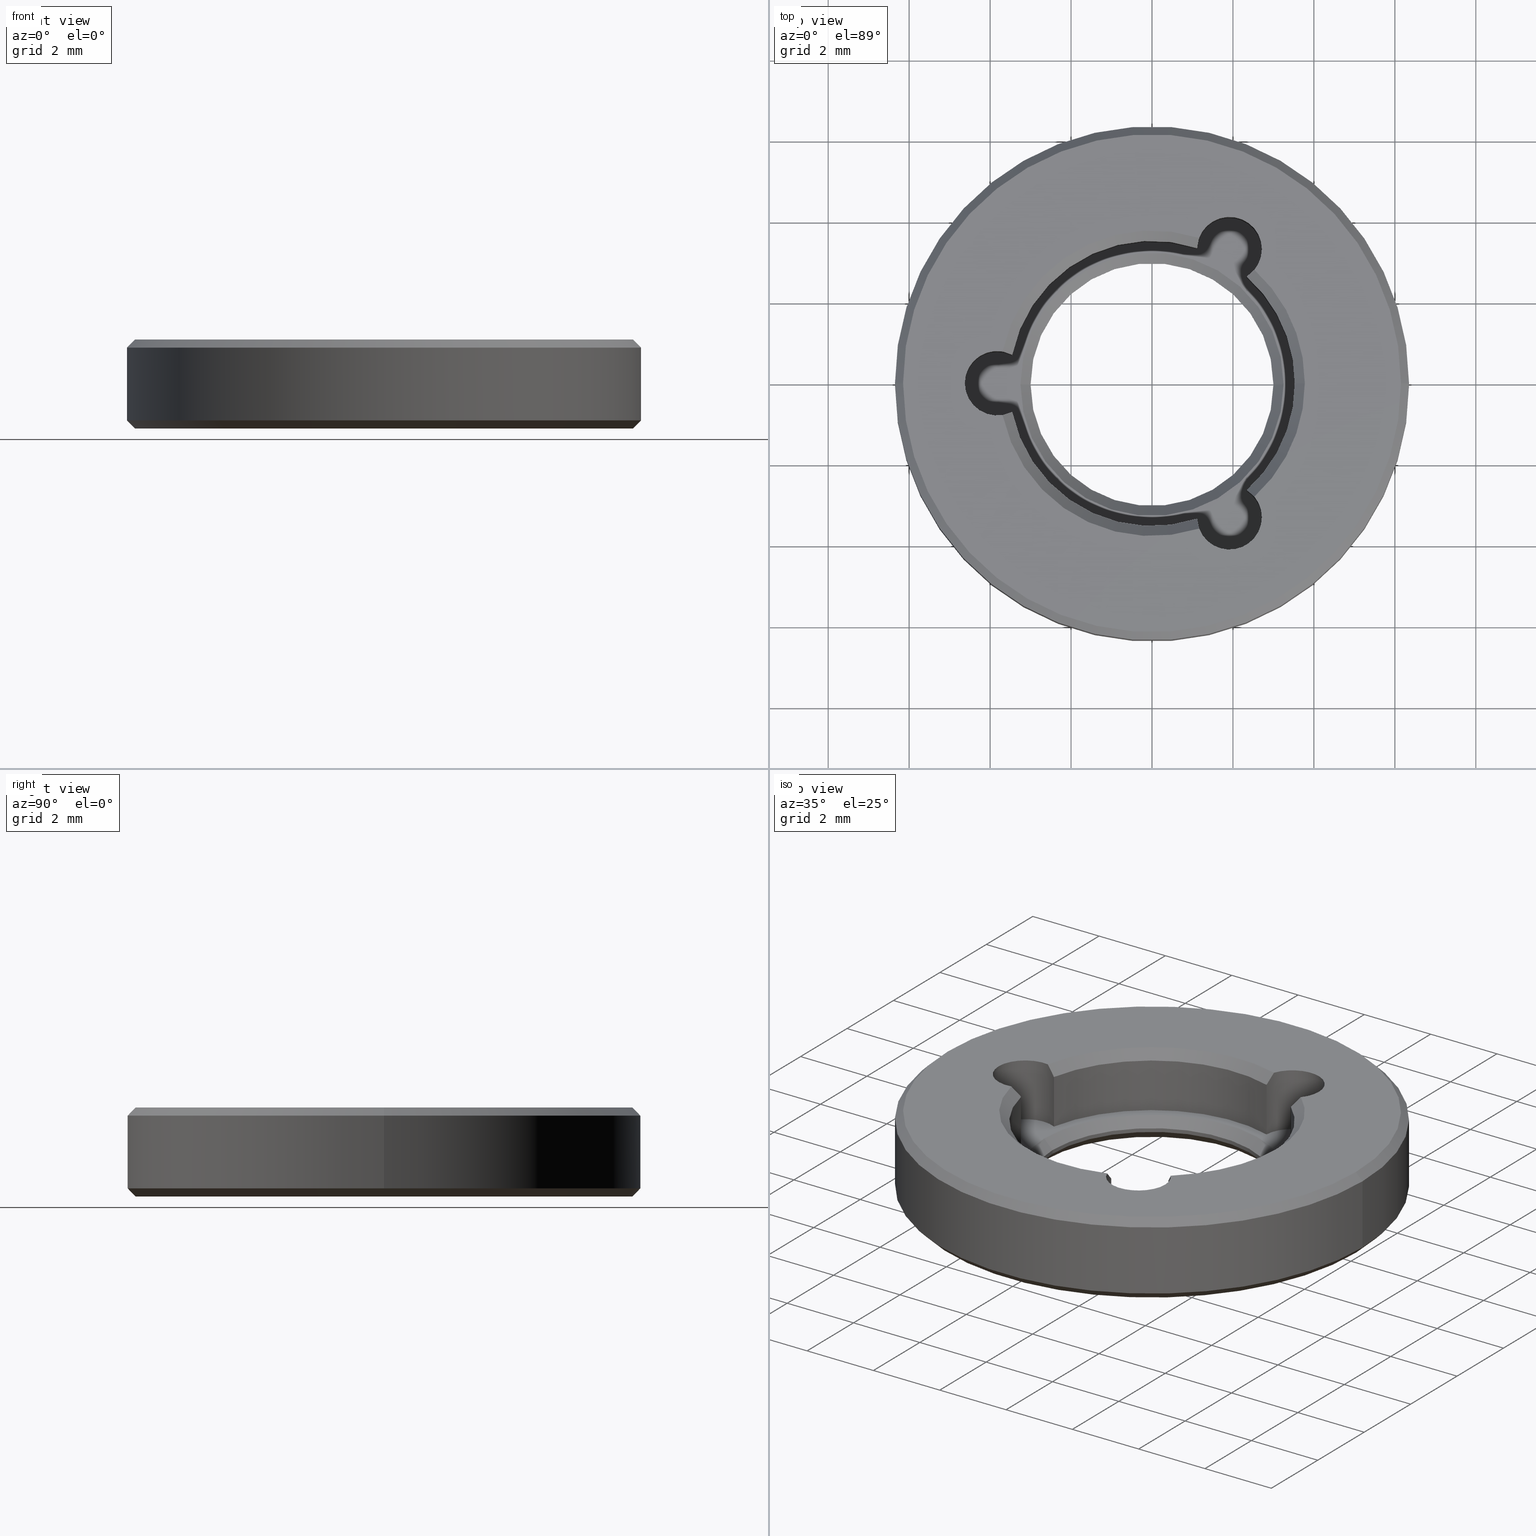
[diagram: canonical four-view strip — front | top / right | iso, engineering-drawing reading convention]
A machine part, canonical four-view strip (front | top / right | iso — engineering-drawing reading convention). The complete STEP part file that produces these views, byte-faithful:
ISO-10303-21;
HEADER;
FILE_DESCRIPTION (( 'STEP AP203' ),
    '1' );
FILE_NAME ('1.6.4.8-ZSJ-05-7.STEP',
    '2024-04-15T05:49:46',
    ( '' ),
    ( '' ),
    'SwSTEP 2.0',
    'SolidWorks 2021',
    '' );
FILE_SCHEMA (( 'CONFIG_CONTROL_DESIGN' ));
ENDSEC;

DATA;
#1 = CARTESIAN_POINT ( 'NONE',  ( 0.000000000000000000, 0.000000000000000000, 0.1999999999999987899 ) ) ;
#2 = ORIENTED_EDGE ( 'NONE', *, *, #750, .T. ) ;
#3 = CARTESIAN_POINT ( 'NONE',  ( 2.528963384397282521, 2.802671796764269807, 2.200000000000000178 ) ) ;
#4 = EDGE_CURVE ( 'NONE', #441, #583, #565, .T. ) ;
#5 = DIRECTION ( 'NONE',  ( -0.000000000000000000, -0.000000000000000000, 1.000000000000000000 ) ) ;
#6 = ORIENTED_EDGE ( 'NONE', *, *, #133, .T. ) ;
#7 = VECTOR ( 'NONE', #753, 1000.000000000000000 ) ;
#8 = CC_DESIGN_APPROVAL ( #726, ( #873 ) ) ;
#9 = CARTESIAN_POINT ( 'NONE',  ( 1.912500000000016076, -3.312547169475469122, 0.6000000000000003109 ) ) ;
#10 = CARTESIAN_POINT ( 'NONE',  ( 1.113143496693238976, 3.344628014558502116, 1.949999999999995959 ) ) ;
#11 = CARTESIAN_POINT ( 'NONE',  ( 0.000000000000000000, 0.000000000000000000, 0.000000000000000000 ) ) ;
#12 = DIRECTION ( 'NONE',  ( -0.000000000000000000, -0.000000000000000000, 1.000000000000000000 ) ) ;
#13 = EDGE_CURVE ( 'NONE', #697, #626, #72, .T. ) ;
#14 = DIRECTION ( 'NONE',  ( 1.000000000000000000, -8.881784197001252323E-16, 0.000000000000000000 ) ) ;
#15 = CARTESIAN_POINT ( 'NONE',  ( 1.133346610315522751, 3.512569729544490205, 2.115881670838754669 ) ) ;
#16 = ADVANCED_FACE ( 'NONE', ( #635 ), #23, .F. ) ;
#17 = VERTEX_POINT ( 'NONE', #863 ) ;
#18 = LINE ( 'NONE', #859, #709 ) ;
#19 = CONICAL_SURFACE ( 'NONE', #525, 6.349999999999999645, 0.7853981633974504994 ) ;
#20 = DIRECTION ( 'NONE',  ( 0.000000000000000000, 0.000000000000000000, 1.000000000000000000 ) ) ;
#21 = AXIS2_PLACEMENT_3D ( 'NONE', #623, #131, #475 ) ;
#22 = DIRECTION ( 'NONE',  ( 1.000000000000000000, 0.000000000000000000, 0.000000000000000000 ) ) ;
#23 = CYLINDRICAL_SURFACE ( 'NONE', #674, 0.8000000000000010436 ) ;
#24 = EDGE_CURVE ( 'NONE', #270, #697, #758, .T. ) ;
#25 = CARTESIAN_POINT ( 'NONE',  ( -3.453104575163398415, 0.7083034610854338498, 1.949999999999995959 ) ) ;
#26 = DIRECTION ( 'NONE',  ( -0.000000000000000000, -0.000000000000000000, 1.000000000000000000 ) ) ;
#27 = ORIENTED_EDGE ( 'NONE', *, *, #253, .F. ) ;
#28 = EDGE_LOOP ( 'NONE', ( #469, #599 ) ) ;
#29 = EDGE_CURVE ( 'NONE', #514, #879, #724, .T. ) ;
#30 = AXIS2_PLACEMENT_3D ( 'NONE', #831, #182, #132 ) ;
#31 = DIRECTION ( 'NONE',  ( 1.000000000000000000, 0.000000000000000000, 0.000000000000000000 ) ) ;
#32 = EDGE_LOOP ( 'NONE', ( #378, #752, #737, #315 ) ) ;
#33 = ORIENTED_EDGE ( 'NONE', *, *, #537, .T. ) ;
#34 = CONICAL_SURFACE ( 'NONE', #350, 3.524999999999999911, 0.7853981633974447263 ) ;
#35 = DIRECTION ( 'NONE',  ( 1.000000000000000000, 0.000000000000000000, 0.000000000000000000 ) ) ;
#36 = DIRECTION ( 'NONE',  ( 1.000000000000000000, 0.000000000000000000, 0.000000000000000000 ) ) ;
#37 = EDGE_CURVE ( 'NONE', #369, #899, #816, .T. ) ;
#38 = ORIENTED_EDGE ( 'NONE', *, *, #683, .F. ) ;
#39 = EDGE_LOOP ( 'NONE', ( #106, #191, #764, #397 ) ) ;
#40 = DIRECTION ( 'NONE',  ( -0.000000000000000000, -0.000000000000000000, -1.000000000000000000 ) ) ;
#41 = CYLINDRICAL_SURFACE ( 'NONE', #527, 0.8000000000000008216 ) ;
#42 = EDGE_LOOP ( 'NONE', ( #680, #871, #483, #331 ) ) ;
#43 = EDGE_CURVE ( 'NONE', #17, #769, #883, .T. ) ;
#44 = CARTESIAN_POINT ( 'NONE',  ( 0.000000000000000000, 0.000000000000000000, 1.949999999999995959 ) ) ;
#45 = DIRECTION ( 'NONE',  ( -0.5000000000000042188, 0.8660254037844362651, 0.000000000000000000 ) ) ;
#46 = VECTOR ( 'NONE', #660, 1000.000000000000114 ) ;
#47 = ORIENTED_EDGE ( 'NONE', *, *, #608, .T. ) ;
#48 = CIRCLE ( 'NONE', #137, 3.775000000000002132 ) ;
#49 = CIRCLE ( 'NONE', #251, 3.524999999999999911 ) ;
#50 = FACE_OUTER_BOUND ( 'NONE', #558, .T. ) ;
#51 = MANIFOLD_SOLID_BREP ( '����(Բ��)1', #631 ) ;
#52 = DIRECTION ( 'NONE',  ( 1.000000000000000000, 0.000000000000000000, 0.000000000000000000 ) ) ;
#53 = DATE_AND_TIME ( #396, #81 ) ;
#54 = ORIENTED_EDGE ( 'NONE', *, *, #359, .F. ) ;
#55 = DIRECTION ( 'NONE',  ( 0.000000000000000000, 0.000000000000000000, -1.000000000000000000 ) ) ;
#56 = ADVANCED_FACE ( 'NONE', ( #575 ), #578, .F. ) ;
#57 = CARTESIAN_POINT ( 'NONE',  ( -3.453104575163398415, 0.7083034610854338498, 1.949999999999995959 ) ) ;
#58 = APPLICATION_PROTOCOL_DEFINITION ( 'international standard', 'config_control_design', 1994, #399 ) ;
#59 = VERTEX_POINT ( 'NONE', #213 ) ;
#60 = VERTEX_POINT ( 'NONE', #794 ) ;
#61 = DIRECTION ( 'NONE',  ( 1.000000000000000000, 0.000000000000000000, 0.000000000000000000 ) ) ;
#62 = CARTESIAN_POINT ( 'NONE',  ( 0.000000000000000000, 0.000000000000000000, 0.6000000000000000888 ) ) ;
#63 = CALENDAR_DATE ( 2024, 15, 4 ) ;
#64 = ORIENTED_EDGE ( 'NONE', *, *, #259, .F. ) ;
#65 = DIRECTION ( 'NONE',  ( -1.000000000000000000, 0.000000000000000000, 0.000000000000000000 ) ) ;
#66 = AXIS2_PLACEMENT_3D ( 'NONE', #629, #5, #797 ) ;
#67 = SECURITY_CLASSIFICATION ( '', '', #286 ) ;
#68 = CARTESIAN_POINT ( 'NONE',  ( 0.000000000000000000, 0.000000000000000000, 2.200000000000000178 ) ) ;
#69 = ORIENTED_EDGE ( 'NONE', *, *, #299, .F. ) ;
#70 = ADVANCED_FACE ( 'NONE', ( #785 ), #77, .F. ) ;
#71 = DIRECTION ( 'NONE',  ( -0.000000000000000000, -0.000000000000000000, -1.000000000000000000 ) ) ;
#72 = B_SPLINE_CURVE_WITH_KNOTS ( 'NONE', 3,
 ( #152, #420, #568, #710 ),
 .UNSPECIFIED., .F., .F.,
 ( 4, 4 ),
 ( 2.812005786003215078E-07, 0.0003550956267152758543 ),
 .UNSPECIFIED. ) ;
#73 = DIRECTION ( 'NONE',  ( -0.000000000000000000, -0.000000000000000000, 1.000000000000000000 ) ) ;
#74 = VERTEX_POINT ( 'NONE', #644 ) ;
#75 = DIRECTION ( 'NONE',  ( -0.000000000000000000, -0.000000000000000000, -1.000000000000000000 ) ) ;
#76 = CARTESIAN_POINT ( 'NONE',  ( 2.712499999999969713, 3.312547169475495767, -1.662741699796954409 ) ) ;
#77 = CONICAL_SURFACE ( 'NONE', #374, 3.524999999999999911, 0.7853981633974447263 ) ;
#78 = VECTOR ( 'NONE', #254, 1000.000000000000000 ) ;
#79 = CIRCLE ( 'NONE', #245, 6.349999999999999645 ) ;
#80 = EDGE_CURVE ( 'NONE', #417, #249, #273, .T. ) ;
#81 = LOCAL_TIME ( 13, 49, 46.00000000000000000, #462 ) ;
#82 = LINE ( 'NONE', #293, #319 ) ;
#83 = DIRECTION ( 'NONE',  ( 0.7071067811865524577, 0.000000000000000000, 0.7071067811865426878 ) ) ;
#84 = CARTESIAN_POINT ( 'NONE',  ( 0.000000000000000000, 0.000000000000000000, 2.200000000000000178 ) ) ;
#85 = DIRECTION ( 'NONE',  ( 0.000000000000000000, 0.000000000000000000, 1.000000000000000000 ) ) ;
#86 = VERTEX_POINT ( 'NONE', #801 ) ;
#87 = DIRECTION ( 'NONE',  ( -0.000000000000000000, -0.000000000000000000, -1.000000000000000000 ) ) ;
#88 = DIRECTION ( 'NONE',  ( -0.5000000000000042188, 0.8660254037844362651, 0.000000000000000000 ) ) ;
#89 = ORIENTED_EDGE ( 'NONE', *, *, #580, .F. ) ;
#90 = AXIS2_PLACEMENT_3D ( 'NONE', #366, #12, #798 ) ;
#91 = DIRECTION ( 'NONE',  ( 0.000000000000000000, 0.000000000000000000, 1.000000000000000000 ) ) ;
#92 = AXIS2_PLACEMENT_3D ( 'NONE', #718, #784, #432 ) ;
#93 = AXIS2_PLACEMENT_3D ( 'NONE', #404, #907, #126 ) ;
#94 = DIRECTION ( 'NONE',  ( 1.000000000000000000, 0.000000000000000000, 0.000000000000000000 ) ) ;
#95 = EDGE_CURVE ( 'NONE', #521, #885, #209, .T. ) ;
#96 = CARTESIAN_POINT ( 'NONE',  ( 2.528963384397282521, 2.802671796764269807, 2.200000000000000178 ) ) ;
#97 = CARTESIAN_POINT ( 'NONE',  ( 0.000000000000000000, 0.000000000000000000, 0.2499999999999985012 ) ) ;
#98 = ORIENTED_EDGE ( 'NONE', *, *, #439, .T. ) ;
#99 = LINE ( 'NONE', #811, #46 ) ;
#100 = ORIENTED_EDGE ( 'NONE', *, *, #704, .T. ) ;
#101 = ORIENTED_EDGE ( 'NONE', *, *, #853, .T. ) ;
#102 = CIRCLE ( 'NONE', #540, 3.524999999999999911 ) ;
#103 = CARTESIAN_POINT ( 'NONE',  ( 1.912499999999968781, 3.312547169475495767, -1.662741699796954409 ) ) ;
#104 = AXIS2_PLACEMENT_3D ( 'NONE', #506, #802, #22 ) ;
#105 = ORIENTED_EDGE ( 'NONE', *, *, #184, .F. ) ;
#106 = ORIENTED_EDGE ( 'NONE', *, *, #287, .F. ) ;
#107 = LINE ( 'NONE', #381, #434 ) ;
#108 = EDGE_CURVE ( 'NONE', #734, #606, #284, .T. ) ;
#109 = DIRECTION ( 'NONE',  ( -0.7071067811865482389, 0.000000000000000000, -0.7071067811865469066 ) ) ;
#110 = ORIENTED_EDGE ( 'NONE', *, *, #683, .T. ) ;
#111 = ORIENTED_EDGE ( 'NONE', *, *, #508, .F. ) ;
#112 = CARTESIAN_POINT ( 'NONE',  ( -3.453104575163398859, -0.7083034610854347379, 1.400000000000000133 ) ) ;
#113 = DIRECTION ( 'NONE',  ( -0.000000000000000000, -0.000000000000000000, -1.000000000000000000 ) ) ;
#114 = ORIENTED_EDGE ( 'NONE', *, *, #443, .F. ) ;
#115 = DIRECTION ( 'NONE',  ( 1.000000000000000000, 0.000000000000000000, 0.000000000000000000 ) ) ;
#116 = CARTESIAN_POINT ( 'NONE',  ( 0.000000000000000000, 0.000000000000000000, 0.3500000000000006994 ) ) ;
#117 = DATE_AND_TIME ( #667, #848 ) ;
#118 = EDGE_LOOP ( 'NONE', ( #738, #64, #275, #241 ) ) ;
#119 = AXIS2_PLACEMENT_3D ( 'NONE', #364, #602, #470 ) ;
#120 = CIRCLE ( 'NONE', #362, 0.8000000000000008216 ) ;
#121 = CARTESIAN_POINT ( 'NONE',  ( 2.475301313191949237, 2.737791820598515891, 2.115881670838753781 ) ) ;
#122 = EDGE_CURVE ( 'NONE', #301, #169, #149, .T. ) ;
#123 = CARTESIAN_POINT ( 'NONE',  ( -3.453104575163398859, -0.7083034610854348490, 0.6000000000000003109 ) ) ;
#124 =( LENGTH_UNIT ( ) NAMED_UNIT ( * ) SI_UNIT ( .MILLI., .METRE. ) );
#125 = EDGE_LOOP ( 'NONE', ( #390, #757, #164, #111 ) ) ;
#126 = DIRECTION ( 'NONE',  ( 1.000000000000000000, 0.000000000000000000, 0.000000000000000000 ) ) ;
#127 = CC_DESIGN_PERSON_AND_ORGANIZATION_ASSIGNMENT ( #183, #744, ( #365 ) ) ;
#128 = CARTESIAN_POINT ( 'NONE',  ( 2.339961078470103040, 2.636324553473079035, 1.399999999999998801 ) ) ;
#129 = CARTESIAN_POINT ( 'NONE',  ( -3.453104575163398859, 0.7083034610854340718, 0.6000000000000003109 ) ) ;
#130 = ORIENTED_EDGE ( 'NONE', *, *, #608, .F. ) ;
#131 = DIRECTION ( 'NONE',  ( 0.000000000000000000, 0.000000000000000000, -1.000000000000000000 ) ) ;
#132 = DIRECTION ( 'NONE',  ( -1.000000000000000000, 0.000000000000000000, 0.000000000000000000 ) ) ;
#133 = EDGE_CURVE ( 'NONE', #529, #270, #294, .T. ) ;
#134 = ORIENTED_EDGE ( 'NONE', *, *, #650, .T. ) ;
#135 = CIRCLE ( 'NONE', #803, 6.349999999999999645 ) ;
#136 = CARTESIAN_POINT ( 'NONE',  ( 0.000000000000000000, 0.000000000000000000, 0.000000000000000000 ) ) ;
#137 = AXIS2_PLACEMENT_3D ( 'NONE', #84, #354, #14 ) ;
#138 = CONICAL_SURFACE ( 'NONE', #903, 3.000000000000000444, 0.7853981633974552734 ) ;
#139 = DIRECTION ( 'NONE',  ( 1.000000000000000000, 0.000000000000000000, -0.000000000000000000 ) ) ;
#140 = CC_DESIGN_PERSON_AND_ORGANIZATION_ASSIGNMENT ( #490, #278, ( #778 ) ) ;
#141 = EDGE_LOOP ( 'NONE', ( #69, #808, #661, #733 ) ) ;
#142 = DIRECTION ( 'NONE',  ( 1.000000000000000000, 0.000000000000000000, 0.000000000000000000 ) ) ;
#143 = DIRECTION ( 'NONE',  ( 0.000000000000000000, -0.000000000000000000, 1.000000000000000000 ) ) ;
#144 = EDGE_CURVE ( 'NONE', #773, #626, #501, .T. ) ;
#145 = CARTESIAN_POINT ( 'NONE',  ( 2.339961078470140343, -2.636324553473046617, 1.949999999999995959 ) ) ;
#146 = DATE_AND_TIME ( #283, #304 ) ;
#147 = DIRECTION ( 'NONE',  ( 1.000000000000000000, 0.000000000000000000, 0.000000000000000000 ) ) ;
#148 = ORIENTED_EDGE ( 'NONE', *, *, #95, .F. ) ;
#149 = CIRCLE ( 'NONE', #900, 3.249999999999999556 ) ;
#150 = CIRCLE ( 'NONE', #498, 6.349999999999999645 ) ;
#151 = DIRECTION ( 'NONE',  ( -0.000000000000000000, -0.000000000000000000, -1.000000000000000000 ) ) ;
#152 = CARTESIAN_POINT ( 'NONE',  ( 2.528963384397321601, -2.802671796764234280, 2.200000000000000178 ) ) ;
#153 = LINE ( 'NONE', #706, #280 ) ;
#154 = CARTESIAN_POINT ( 'NONE',  ( 2.339961078470140343, -2.636324553473046617, 1.400000000000000133 ) ) ;
#155 = EDGE_LOOP ( 'NONE', ( #242, #33 ) ) ;
#156 = CARTESIAN_POINT ( 'NONE',  ( 0.000000000000000000, 0.000000000000000000, 2.200000000000000178 ) ) ;
#157 = DIRECTION ( 'NONE',  ( -0.000000000000000000, -0.000000000000000000, 1.000000000000000000 ) ) ;
#158 = EDGE_CURVE ( 'NONE', #291, #864, #102, .T. ) ;
#159 = CARTESIAN_POINT ( 'NONE',  ( 0.000000000000000000, 0.000000000000000000, 2.000000000000000444 ) ) ;
#160 = CIRCLE ( 'NONE', #512, 3.000000000000000444 ) ;
#161 = DIRECTION ( 'NONE',  ( 0.000000000000000000, 0.000000000000000000, 1.000000000000000000 ) ) ;
#162 = ORIENTED_EDGE ( 'NONE', *, *, #786, .T. ) ;
#163 = DIRECTION ( 'NONE',  ( -0.000000000000000000, -0.000000000000000000, -1.000000000000000000 ) ) ;
#164 = ORIENTED_EDGE ( 'NONE', *, *, #471, .F. ) ;
#165 = ORIENTED_EDGE ( 'NONE', *, *, #518, .T. ) ;
#166 = EDGE_CURVE ( 'NONE', #514, #864, #206, .T. ) ;
#167 = DIRECTION ( 'NONE',  ( 0.000000000000000000, 0.000000000000000000, -1.000000000000000000 ) ) ;
#168 = ORIENTED_EDGE ( 'NONE', *, *, #259, .T. ) ;
#169 = VERTEX_POINT ( 'NONE', #666 ) ;
#170 = VECTOR ( 'NONE', #83, 1000.000000000000000 ) ;
#171 = AXIS2_PLACEMENT_3D ( 'NONE', #422, #216, #495 ) ;
#172 = CYLINDRICAL_SURFACE ( 'NONE', #555, 0.8000000000000010436 ) ;
#173 = AXIS2_PLACEMENT_3D ( 'NONE', #298, #675, #252 ) ;
#174 = ORIENTED_EDGE ( 'NONE', *, *, #122, .F. ) ;
#175 = ORIENTED_EDGE ( 'NONE', *, *, #853, .F. ) ;
#176 = FACE_OUTER_BOUND ( 'NONE', #407, .T. ) ;
#177 = DIRECTION ( 'NONE',  ( -0.000000000000000000, -0.000000000000000000, -1.000000000000000000 ) ) ;
#178 = DATE_AND_TIME ( #248, #780 ) ;
#179 = ORIENTED_EDGE ( 'NONE', *, *, #443, .T. ) ;
#180 = B_SPLINE_CURVE_WITH_KNOTS ( 'NONE', 3,
 ( #386, #820, #121, #96 ),
 .UNSPECIFIED., .F., .F.,
 ( 4, 4 ),
 ( 2.868043316631483824E-07, 0.0003551012304683391564 ),
 .UNSPECIFIED. ) ;
#181 = CARTESIAN_POINT ( 'NONE',  ( 0.000000000000000000, 0.000000000000000000, 0.3500000000000006994 ) ) ;
#182 = DIRECTION ( 'NONE',  ( -0.000000000000000000, -0.000000000000000000, -1.000000000000000000 ) ) ;
#183 = PERSON_AND_ORGANIZATION ( #742, #450 ) ;
#184 = EDGE_CURVE ( 'NONE', #773, #529, #496, .T. ) ;
#185 = ORIENTED_EDGE ( 'NONE', *, *, #827, .F. ) ;
#186 = DIRECTION ( 'NONE',  ( 0.000000000000000000, 0.000000000000000000, 1.000000000000000000 ) ) ;
#187 = DIRECTION ( 'NONE',  ( 0.000000000000000000, 0.000000000000000000, 1.000000000000000000 ) ) ;
#188 = CARTESIAN_POINT ( 'NONE',  ( 1.133346610315572711, -3.512569729544473773, 2.115881670838754669 ) ) ;
#189 = CIRCLE ( 'NONE', #868, 3.524999999999999911 ) ;
#190 = EDGE_LOOP ( 'NONE', ( #54, #645, #47, #446 ) ) ;
#191 = ORIENTED_EDGE ( 'NONE', *, *, #43, .F. ) ;
#192 = AXIS2_PLACEMENT_3D ( 'NONE', #419, #91, #489 ) ;
#193 = LINE ( 'NONE', #112, #7 ) ;
#194 = CYLINDRICAL_SURFACE ( 'NONE', #692, 6.349999999999999645 ) ;
#195 = PERSON_AND_ORGANIZATION ( #742, #450 ) ;
#196 = ORIENTED_EDGE ( 'NONE', *, *, #790, .T. ) ;
#197 = DIRECTION ( 'NONE',  ( 1.000000000000000000, 0.000000000000000000, 0.000000000000000000 ) ) ;
#198 = EDGE_CURVE ( 'NONE', #824, #270, #464, .T. ) ;
#199 = DIRECTION ( 'NONE',  ( 0.000000000000000000, 0.000000000000000000, -1.000000000000000000 ) ) ;
#200 = ORIENTED_EDGE ( 'NONE', *, *, #198, .T. ) ;
#201 = CARTESIAN_POINT ( 'NONE',  ( 0.000000000000000000, 0.000000000000000000, 1.949999999999995959 ) ) ;
#202 = EDGE_CURVE ( 'NONE', #734, #60, #723, .T. ) ;
#203 = LINE ( 'NONE', #841, #78 ) ;
#204 = APPROVAL_ROLE ( '' ) ;
#205 = ORIENTED_EDGE ( 'NONE', *, *, #4, .F. ) ;
#206 = CIRCLE ( 'NONE', #171, 0.8000000000000010436 ) ;
#207 = DIRECTION ( 'NONE',  ( 0.000000000000000000, 0.000000000000000000, 1.000000000000000000 ) ) ;
#208 = AXIS2_PLACEMENT_3D ( 'NONE', #136, #71, #65 ) ;
#209 = B_SPLINE_CURVE_WITH_KNOTS ( 'NONE', 3,
 ( #491, #703, #641, #290 ),
 .UNSPECIFIED., .F., .F.,
 ( 4, 4 ),
 ( 2.812005786157019320E-07, 0.0003550956267152915210 ),
 .UNSPECIFIED. ) ;
#210 = CARTESIAN_POINT ( 'NONE',  ( 3.775000000000002132, 0.000000000000000000, 2.200000000000000178 ) ) ;
#211 = ORIENTED_EDGE ( 'NONE', *, *, #144, .F. ) ;
#212 = CARTESIAN_POINT ( 'NONE',  ( 1.113143496693238976, 3.344628014558502560, 1.399999999999998801 ) ) ;
#213 = CARTESIAN_POINT ( 'NONE',  ( 6.149999999999999467, 7.654042494670954648E-16, 2.200000000000000178 ) ) ;
#214 = EDGE_CURVE ( 'NONE', #583, #664, #360, .T. ) ;
#215 = CARTESIAN_POINT ( 'NONE',  ( 3.250000000000003109, 0.000000000000000000, 0.6000000000000000888 ) ) ;
#216 = DIRECTION ( 'NONE',  ( -0.000000000000000000, -0.000000000000000000, -1.000000000000000000 ) ) ;
#217 = CIRCLE ( 'NONE', #739, 6.149999999999999467 ) ;
#218 = CIRCLE ( 'NONE', #448, 0.8000000000000009326 ) ;
#219 = CIRCLE ( 'NONE', #363, 6.150000000000000355 ) ;
#220 = DIRECTION ( 'NONE',  ( 0.7071067811865490160, 0.000000000000000000, 0.7071067811865460184 ) ) ;
#221 = DIRECTION ( 'NONE',  ( 1.000000000000000000, 0.000000000000000000, 0.000000000000000000 ) ) ;
#222 = ADVANCED_FACE ( 'NONE', ( #519 ), #819, .F. ) ;
#223 = PLANE ( 'NONE',  #192 ) ;
#224 = CARTESIAN_POINT ( 'NONE',  ( 0.000000000000000000, 0.000000000000000000, 0.000000000000000000 ) ) ;
#225 = ORIENTED_EDGE ( 'NONE', *, *, #640, .T. ) ;
#226 = DIRECTION ( 'NONE',  ( 0.7071067811865451302, 0.000000000000000000, 0.7071067811865500152 ) ) ;
#227 = DIRECTION ( 'NONE',  ( 0.000000000000000000, 0.000000000000000000, 1.000000000000000000 ) ) ;
#228 = ORIENTED_EDGE ( 'NONE', *, *, #418, .F. ) ;
#229 = AXIS2_PLACEMENT_3D ( 'NONE', #804, #40, #35 ) ;
#230 = VECTOR ( 'NONE', #427, 1000.000000000000000 ) ;
#231 = DIRECTION ( 'NONE',  ( -0.000000000000000000, -0.000000000000000000, -1.000000000000000000 ) ) ;
#232 = EDGE_CURVE ( 'NONE', #370, #86, #601, .T. ) ;
#233 = ORIENTED_EDGE ( 'NONE', *, *, #4, .T. ) ;
#234 = EDGE_LOOP ( 'NONE', ( #579, #668, #832, #179 ) ) ;
#235 = CARTESIAN_POINT ( 'NONE',  ( 3.524999999999999911, 0.000000000000000000, 0.6000000000000000888 ) ) ;
#236 = ORIENTED_EDGE ( 'NONE', *, *, #704, .F. ) ;
#237 = ORIENTED_EDGE ( 'NONE', *, *, #766, .F. ) ;
#238 = ADVANCED_FACE ( 'NONE', ( #305 ), #656, .F. ) ;
#239 = CARTESIAN_POINT ( 'NONE',  ( 0.000000000000000000, 0.000000000000000000, 1.949999999999995959 ) ) ;
#240 = FACE_OUTER_BOUND ( 'NONE', #379, .T. ) ;
#241 = ORIENTED_EDGE ( 'NONE', *, *, #549, .F. ) ;
#242 = ORIENTED_EDGE ( 'NONE', *, *, #214, .T. ) ;
#243 = CYLINDRICAL_SURFACE ( 'NONE', #497, 3.524999999999999911 ) ;
#244 = AXIS2_PLACEMENT_3D ( 'NONE', #342, #333, #619 ) ;
#245 = AXIS2_PLACEMENT_3D ( 'NONE', #1, #476, #274 ) ;
#246 = FACE_OUTER_BOUND ( 'NONE', #839, .T. ) ;
#247 = VECTOR ( 'NONE', #835, 1000.000000000000000 ) ;
#248 = CALENDAR_DATE ( 2024, 15, 4 ) ;
#249 = VERTEX_POINT ( 'NONE', #437 ) ;
#250 = VERTEX_POINT ( 'NONE', #371 ) ;
#251 = AXIS2_PLACEMENT_3D ( 'NONE', #201, #207, #197 ) ;
#252 = DIRECTION ( 'NONE',  ( 1.000000000000000000, 0.000000000000000000, 0.000000000000000000 ) ) ;
#253 = EDGE_CURVE ( 'NONE', #60, #734, #570, .T. ) ;
#254 = DIRECTION ( 'NONE',  ( -0.000000000000000000, -0.000000000000000000, -1.000000000000000000 ) ) ;
#255 =( NAMED_UNIT ( * ) PLANE_ANGLE_UNIT ( ) SI_UNIT ( $, .RADIAN. ) );
#256 = EDGE_LOOP ( 'NONE', ( #459, #630 ) ) ;
#257 = CARTESIAN_POINT ( 'NONE',  ( -6.150000000000000355, 7.654042494670957606E-16, 0.000000000000000000 ) ) ;
#258 = DIRECTION ( 'NONE',  ( 0.000000000000000000, 0.000000000000000000, 1.000000000000000000 ) ) ;
#259 = EDGE_CURVE ( 'NONE', #593, #417, #834, .T. ) ;
#260 = DIRECTION ( 'NONE',  ( 0.000000000000000000, 0.000000000000000000, 1.000000000000000000 ) ) ;
#261 = ORIENTED_EDGE ( 'NONE', *, *, #881, .F. ) ;
#262 = DIRECTION ( 'NONE',  ( 1.000000000000000000, 0.000000000000000000, 0.000000000000000000 ) ) ;
#263 = CARTESIAN_POINT ( 'NONE',  ( 0.000000000000000000, 0.000000000000000000, 0.6000000000000000888 ) ) ;
#264 = PERSON_AND_ORGANIZATION ( #742, #450 ) ;
#265 = ORIENTED_EDGE ( 'NONE', *, *, #827, .T. ) ;
#266 = CIRCLE ( 'NONE', #435, 0.8000000000000010436 ) ;
#267 = ADVANCED_FACE ( 'NONE', ( #581 ), #172, .F. ) ;
#268 = DIRECTION ( 'NONE',  ( 0.7071067811865482389, 8.659560562354941486E-17, -0.7071067811865469066 ) ) ;
#269 = CARTESIAN_POINT ( 'NONE',  ( 1.162703282269326177, 3.591482434510873567, 2.200000000000000178 ) ) ;
#270 = VERTEX_POINT ( 'NONE', #872 ) ;
#271 = LINE ( 'NONE', #691, #603 ) ;
#272 = EDGE_CURVE ( 'NONE', #335, #86, #107, .T. ) ;
#273 = B_SPLINE_CURVE_WITH_KNOTS ( 'NONE', 3,
 ( #719, #15, #504, #10 ),
 .UNSPECIFIED., .F., .F.,
 ( 4, 4 ),
 ( 2.812005786058547505E-07, 0.0003550956267152818174 ),
 .UNSPECIFIED. ) ;
#274 = DIRECTION ( 'NONE',  ( 1.000000000000000000, 0.000000000000000000, 0.000000000000000000 ) ) ;
#275 = ORIENTED_EDGE ( 'NONE', *, *, #344, .F. ) ;
#276 = CARTESIAN_POINT ( 'NONE',  ( 1.113143496693286494, -3.344628014558486573, 1.949999999999995959 ) ) ;
#277 = CARTESIAN_POINT ( 'NONE',  ( 3.524999999999999911, 0.000000000000000000, 0.6000000000000000888 ) ) ;
#278 = PERSON_AND_ORGANIZATION_ROLE ( 'design_supplier' ) ;
#279 = ORIENTED_EDGE ( 'NONE', *, *, #810, .F. ) ;
#280 = VECTOR ( 'NONE', #220, 1000.000000000000114 ) ;
#281 = CARTESIAN_POINT ( 'NONE',  ( -3.000000000000000444, 3.673940397442060361E-16, 0.3500000000000006994 ) ) ;
#282 = EDGE_CURVE ( 'NONE', #626, #74, #189, .T. ) ;
#283 = CALENDAR_DATE ( 2024, 15, 4 ) ;
#284 = LINE ( 'NONE', #358, #705 ) ;
#285 = DIRECTION ( 'NONE',  ( 0.000000000000000000, 0.000000000000000000, 1.000000000000000000 ) ) ;
#286 = SECURITY_CLASSIFICATION_LEVEL ( 'unclassified' ) ;
#287 = EDGE_CURVE ( 'NONE', #769, #369, #99, .T. ) ;
#288 = CARTESIAN_POINT ( 'NONE',  ( 0.000000000000000000, 0.000000000000000000, 0.6000000000000000888 ) ) ;
#289 = LINE ( 'NONE', #500, #424 ) ;
#290 = CARTESIAN_POINT ( 'NONE',  ( -3.453104575163398415, -0.7083034610854346269, 1.949999999999995737 ) ) ;
#291 = VERTEX_POINT ( 'NONE', #235 ) ;
#292 = ADVANCED_FACE ( 'NONE', ( #246 ), #528, .F. ) ;
#293 = CARTESIAN_POINT ( 'NONE',  ( -3.000000000000000444, 3.673940397442060361E-16, 0.3500000000000006994 ) ) ;
#294 = LINE ( 'NONE', #857, #722 ) ;
#295 = EDGE_CURVE ( 'NONE', #751, #886, #135, .T. ) ;
#296 = DIRECTION ( 'NONE',  ( 0.000000000000000000, 0.000000000000000000, -1.000000000000000000 ) ) ;
#297 = DIRECTION ( 'NONE',  ( 1.000000000000000000, 0.000000000000000000, 0.000000000000000000 ) ) ;
#298 = CARTESIAN_POINT ( 'NONE',  ( 0.000000000000000000, 0.000000000000000000, 0.6000000000000000888 ) ) ;
#299 = EDGE_CURVE ( 'NONE', #59, #308, #217, .T. ) ;
#300 = DIRECTION ( 'NONE',  ( 1.000000000000000000, 0.000000000000000000, 0.000000000000000000 ) ) ;
#301 = VERTEX_POINT ( 'NONE', #822 ) ;
#302 = ORIENTED_EDGE ( 'NONE', *, *, #659, .T. ) ;
#303 = CIRCLE ( 'NONE', #465, 3.524999999999999911 ) ;
#304 = LOCAL_TIME ( 13, 49, 46.00000000000000000, #634 ) ;
#305 = FACE_OUTER_BOUND ( 'NONE', #681, .T. ) ;
#306 = ADVANCED_FACE ( 'NONE', ( #876, #814 ), #451, .T. ) ;
#307 = ORIENTED_EDGE ( 'NONE', *, *, #272, .T. ) ;
#308 = VERTEX_POINT ( 'NONE', #889 ) ;
#309 = DIRECTION ( 'NONE',  ( 0.000000000000000000, 0.000000000000000000, 1.000000000000000000 ) ) ;
#310 = ORIENTED_EDGE ( 'NONE', *, *, #24, .F. ) ;
#311 = ORIENTED_EDGE ( 'NONE', *, *, #870, .F. ) ;
#312 = CARTESIAN_POINT ( 'NONE',  ( 1.912500000000016076, -3.312547169475469122, 2.200000000000000178 ) ) ;
#313 = CARTESIAN_POINT ( 'NONE',  ( -3.824999999999999734, -4.684274006738625136E-16, -1.662741699796954853 ) ) ;
#314 = EDGE_LOOP ( 'NONE', ( #228, #615, #438, #205 ) ) ;
#315 = ORIENTED_EDGE ( 'NONE', *, *, #282, .T. ) ;
#316 = DESIGN_CONTEXT ( 'detailed design', #637, 'design' ) ;
#317 = DIRECTION ( 'NONE',  ( 0.000000000000000000, 0.000000000000000000, 1.000000000000000000 ) ) ;
#318 = ADVANCED_FACE ( 'NONE', ( #904 ), #779, .F. ) ;
#319 = VECTOR ( 'NONE', #560, 1000.000000000000000 ) ;
#320 = DIRECTION ( 'NONE',  ( 1.000000000000000000, 0.000000000000000000, 0.000000000000000000 ) ) ;
#321 = APPROVAL_ROLE ( '' ) ;
#322 = ORIENTED_EDGE ( 'NONE', *, *, #166, .T. ) ;
#323 = DIRECTION ( 'NONE',  ( -1.000000000000000000, 0.000000000000000000, 0.000000000000000000 ) ) ;
#324 = CC_DESIGN_DATE_AND_TIME_ASSIGNMENT ( #178, #457, ( #873 ) ) ;
#325 = LINE ( 'NONE', #609, #793 ) ;
#326 = ORIENTED_EDGE ( 'NONE', *, *, #588, .T. ) ;
#327 = CARTESIAN_POINT ( 'NONE',  ( 0.000000000000000000, 0.000000000000000000, 0.000000000000000000 ) ) ;
#328 = DIRECTION ( 'NONE',  ( -0.7071067811865490160, 0.000000000000000000, -0.7071067811865459074 ) ) ;
#329 = ADVANCED_FACE ( 'NONE', ( #772 ), #194, .T. ) ;
#330 = APPROVAL_DATE_TIME ( #117, #726 ) ;
#331 = ORIENTED_EDGE ( 'NONE', *, *, #295, .F. ) ;
#332 = FACE_OUTER_BOUND ( 'NONE', #642, .T. ) ;
#333 = DIRECTION ( 'NONE',  ( -0.000000000000000000, -0.000000000000000000, 1.000000000000000000 ) ) ;
#334 = AXIS2_PLACEMENT_3D ( 'NONE', #684, #466, #139 ) ;
#335 = VERTEX_POINT ( 'NONE', #897 ) ;
#336 = CIRCLE ( 'NONE', #572, 6.149999999999999467 ) ;
#337 = CONICAL_SURFACE ( 'NONE', #559, 3.000000000000000444, 0.7853981633974552734 ) ;
#338 = CARTESIAN_POINT ( 'NONE',  ( 0.000000000000000000, 0.000000000000000000, 0.3500000000000006994 ) ) ;
#339 = DIRECTION ( 'NONE',  ( 0.000000000000000000, -0.000000000000000000, 1.000000000000000000 ) ) ;
#340 = ORIENTED_EDGE ( 'NONE', *, *, #613, .F. ) ;
#341 = CARTESIAN_POINT ( 'NONE',  ( 2.339961078470103040, 2.636324553473079035, 0.5999999999999998668 ) ) ;
#342 = CARTESIAN_POINT ( 'NONE',  ( 0.000000000000000000, 0.000000000000000000, 0.6000000000000000888 ) ) ;
#343 = ORIENTED_EDGE ( 'NONE', *, *, #430, .F. ) ;
#344 = EDGE_CURVE ( 'NONE', #672, #593, #502, .T. ) ;
#345 = DIRECTION ( 'NONE',  ( 1.000000000000000000, 0.000000000000000000, 0.000000000000000000 ) ) ;
#346 = AXIS2_PLACEMENT_3D ( 'NONE', #648, #85, #88 ) ;
#347 = CARTESIAN_POINT ( 'NONE',  ( 3.000000000000000444, 0.000000000000000000, 0.3500000000000006994 ) ) ;
#348 = AXIS2_PLACEMENT_3D ( 'NONE', #729, #507, #31 ) ;
#349 = CONICAL_SURFACE ( 'NONE', #847, 6.349999999999999645, 0.7853981633974504994 ) ;
#350 = AXIS2_PLACEMENT_3D ( 'NONE', #44, #728, #115 ) ;
#351 = PRODUCT_RELATED_PRODUCT_CATEGORY ( 'detail', '', ( #365 ) ) ;
#352 = CARTESIAN_POINT ( 'NONE',  ( 6.149999999999999467, 7.531577814756219106E-16, 2.200000000000000178 ) ) ;
#353 = CARTESIAN_POINT ( 'NONE',  ( 0.000000000000000000, 0.000000000000000000, 0.000000000000000000 ) ) ;
#354 = DIRECTION ( 'NONE',  ( -0.000000000000000000, -0.000000000000000000, -1.000000000000000000 ) ) ;
#355 = DIRECTION ( 'NONE',  ( 1.000000000000000000, 0.000000000000000000, 0.000000000000000000 ) ) ;
#356 = ADVANCED_FACE ( 'NONE', ( #410 ), #19, .T. ) ;
#357 = DIRECTION ( 'NONE',  ( -0.000000000000000000, -0.000000000000000000, 1.000000000000000000 ) ) ;
#358 = CARTESIAN_POINT ( 'NONE',  ( -3.000000000000000444, 3.673940397442060361E-16, 0.000000000000000000 ) ) ;
#359 = EDGE_CURVE ( 'NONE', #751, #899, #203, .T. ) ;
#360 = CIRCLE ( 'NONE', #229, 3.250000000000003109 ) ;
#361 = VECTOR ( 'NONE', #199, 1000.000000000000000 ) ;
#362 = AXIS2_PLACEMENT_3D ( 'NONE', #670, #317, #888 ) ;
#363 = AXIS2_PLACEMENT_3D ( 'NONE', #398, #408, #840 ) ;
#364 = CARTESIAN_POINT ( 'NONE',  ( -3.824999999999999734, -4.684274006738625136E-16, 0.6000000000000003109 ) ) ;
#365 = PRODUCT ( '1.6.4.8-ZSJ-05-7', '1.6.4.8-ZSJ-05-7', '', ( #828 ) ) ;
#366 = CARTESIAN_POINT ( 'NONE',  ( 0.000000000000000000, 0.000000000000000000, 0.1999999999999987899 ) ) ;
#367 = CARTESIAN_POINT ( 'NONE',  ( 0.000000000000000000, 0.000000000000000000, 2.200000000000000178 ) ) ;
#368 = CARTESIAN_POINT ( 'NONE',  ( 0.000000000000000000, 0.000000000000000000, 0.2499999999999985012 ) ) ;
#369 = VERTEX_POINT ( 'NONE', #762 ) ;
#370 = VERTEX_POINT ( 'NONE', #123 ) ;
#371 = CARTESIAN_POINT ( 'NONE',  ( 1.113143496693238976, 3.344628014558502560, 0.5999999999999998668 ) ) ;
#372 = ORIENTED_EDGE ( 'NONE', *, *, #720, .T. ) ;
#373 = ORIENTED_EDGE ( 'NONE', *, *, #850, .F. ) ;
#374 = AXIS2_PLACEMENT_3D ( 'NONE', #866, #20, #431 ) ;
#375 = AXIS2_PLACEMENT_3D ( 'NONE', #156, #75, #345 ) ;
#376 = APPROVAL_PERSON_ORGANIZATION ( #702, #499, #204 ) ;
#377 = DIRECTION ( 'NONE',  ( 1.000000000000000000, 0.000000000000000000, 0.000000000000000000 ) ) ;
#378 = ORIENTED_EDGE ( 'NONE', *, *, #481, .F. ) ;
#379 = EDGE_LOOP ( 'NONE', ( #372, #690, #745, #162, #547, #236 ) ) ;
#380 = UNCERTAINTY_MEASURE_WITH_UNIT (LENGTH_MEASURE( 1.000000000000000082E-05 ), #124, 'distance_accuracy_value', 'NONE');
#381 = CARTESIAN_POINT ( 'NONE',  ( 1.113143496693286716, -3.344628014558486129, 1.400000000000000133 ) ) ;
#382 = APPROVAL_STATUS ( 'not_yet_approved' ) ;
#383 = ADVANCED_FACE ( 'NONE', ( #461 ), #844, .F. ) ;
#384 = ORIENTED_EDGE ( 'NONE', *, *, #13, .F. ) ;
#385 = ORIENTED_EDGE ( 'NONE', *, *, #640, .F. ) ;
#386 = CARTESIAN_POINT ( 'NONE',  ( 2.339961078470103040, 2.636324553473079479, 1.949999999999995737 ) ) ;
#387 = CARTESIAN_POINT ( 'NONE',  ( 0.000000000000000000, 0.000000000000000000, 0.000000000000000000 ) ) ;
#388 = APPROVAL_ROLE ( '' ) ;
#389 = EDGE_LOOP ( 'NONE', ( #600, #534, #809, #818 ) ) ;
#390 = ORIENTED_EDGE ( 'NONE', *, *, #800, .F. ) ;
#391 = EDGE_CURVE ( 'NONE', #250, #890, #776, .T. ) ;
#392 = CYLINDRICAL_SURFACE ( 'NONE', #173, 3.524999999999999911 ) ;
#393 = CONICAL_SURFACE ( 'NONE', #693, 3.249999999999999556, 0.7853981633974491672 ) ;
#394 = CARTESIAN_POINT ( 'NONE',  ( 1.912500000000016076, -3.312547169475469122, -1.662741699796954853 ) ) ;
#395 = AXIS2_PLACEMENT_3D ( 'NONE', #877, #260, #605 ) ;
#396 = CALENDAR_DATE ( 2024, 15, 4 ) ;
#397 = ORIENTED_EDGE ( 'NONE', *, *, #37, .F. ) ;
#398 = CARTESIAN_POINT ( 'NONE',  ( 0.000000000000000000, 0.000000000000000000, 0.000000000000000000 ) ) ;
#399 = APPLICATION_CONTEXT ( 'configuration controlled 3d designs of mechanical parts and assemblies' ) ;
#400 = ADVANCED_FACE ( 'NONE', ( #754 ), #479, .T. ) ;
#401 = DIRECTION ( 'NONE',  ( 1.000000000000000000, 0.000000000000000000, 0.000000000000000000 ) ) ;
#402 = CARTESIAN_POINT ( 'NONE',  ( -3.453104575163398415, -0.7083034610854346269, 1.949999999999995737 ) ) ;
#403 = EDGE_LOOP ( 'NONE', ( #98, #817, #700, #373, #563, #823, #895, #89, #105 ) ) ;
#404 = CARTESIAN_POINT ( 'NONE',  ( 1.912499999999968781, 3.312547169475495767, 0.5999999999999998668 ) ) ;
#405 = LINE ( 'NONE', #546, #361 ) ;
#406 =( NAMED_UNIT ( * ) SI_UNIT ( $, .STERADIAN. ) SOLID_ANGLE_UNIT ( ) );
#407 = EDGE_LOOP ( 'NONE', ( #412, #505, #384, #458 ) ) ;
#408 = DIRECTION ( 'NONE',  ( -0.000000000000000000, -0.000000000000000000, -1.000000000000000000 ) ) ;
#409 = AXIS2_PLACEMENT_3D ( 'NONE', #224, #653, #355 ) ;
#410 = FACE_OUTER_BOUND ( 'NONE', #125, .T. ) ;
#411 = VECTOR ( 'NONE', #428, 1000.000000000000000 ) ;
#412 = ORIENTED_EDGE ( 'NONE', *, *, #650, .F. ) ;
#413 = AXIS2_PLACEMENT_3D ( 'NONE', #116, #678, #52 ) ;
#414 = CC_DESIGN_SECURITY_CLASSIFICATION ( #67, ( #778 ) ) ;
#415 = DIRECTION ( 'NONE',  ( 0.000000000000000000, 0.000000000000000000, 1.000000000000000000 ) ) ;
#416 = DIRECTION ( 'NONE',  ( 1.000000000000000000, 0.000000000000000000, 0.000000000000000000 ) ) ;
#417 = VERTEX_POINT ( 'NONE', #269 ) ;
#418 = EDGE_CURVE ( 'NONE', #606, #441, #423, .T. ) ;
#419 = CARTESIAN_POINT ( 'NONE',  ( 0.000000000000000000, 0.000000000000000000, 2.200000000000000178 ) ) ;
#420 = CARTESIAN_POINT ( 'NONE',  ( 2.475301313191988317, -2.737791820598481252, 2.115881670838754225 ) ) ;
#421 = LINE ( 'NONE', #352, #618 ) ;
#422 = CARTESIAN_POINT ( 'NONE',  ( 1.912499999999968781, 3.312547169475495767, 0.5999999999999998668 ) ) ;
#423 = CIRCLE ( 'NONE', #413, 3.000000000000000444 ) ;
#424 = VECTOR ( 'NONE', #226, 1000.000000000000114 ) ;
#425 = CC_DESIGN_APPROVAL ( #499, ( #67 ) ) ;
#426 = EDGE_CURVE ( 'NONE', #308, #886, #325, .T. ) ;
#427 = DIRECTION ( 'NONE',  ( -0.000000000000000000, 0.000000000000000000, 1.000000000000000000 ) ) ;
#428 = DIRECTION ( 'NONE',  ( -0.000000000000000000, 0.000000000000000000, 1.000000000000000000 ) ) ;
#429 = CARTESIAN_POINT ( 'NONE',  ( 2.712499999999969713, 3.312547169475495767, 0.5999999999999998668 ) ) ;
#430 = EDGE_CURVE ( 'NONE', #879, #417, #218, .T. ) ;
#431 = DIRECTION ( 'NONE',  ( 1.000000000000000000, 0.000000000000000000, 0.000000000000000000 ) ) ;
#432 = DIRECTION ( 'NONE',  ( 1.000000000000000000, 0.000000000000000000, 0.000000000000000000 ) ) ;
#433 = DIRECTION ( 'NONE',  ( 0.000000000000000000, -0.000000000000000000, 1.000000000000000000 ) ) ;
#434 = VECTOR ( 'NONE', #882, 1000.000000000000000 ) ;
#435 = AXIS2_PLACEMENT_3D ( 'NONE', #9, #87, #564 ) ;
#436 = DIRECTION ( 'NONE',  ( 1.000000000000000000, 0.000000000000000000, 0.000000000000000000 ) ) ;
#437 = CARTESIAN_POINT ( 'NONE',  ( 1.113143496693238976, 3.344628014558502116, 1.949999999999995959 ) ) ;
#438 = ORIENTED_EDGE ( 'NONE', *, *, #214, .F. ) ;
#439 = EDGE_CURVE ( 'NONE', #773, #291, #760, .T. ) ;
#440 = CARTESIAN_POINT ( 'NONE',  ( 0.000000000000000000, 0.000000000000000000, 2.200000000000000178 ) ) ;
#441 = VERTEX_POINT ( 'NONE', #472 ) ;
#442 = ORIENTED_EDGE ( 'NONE', *, *, #471, .T. ) ;
#443 = EDGE_CURVE ( 'NONE', #842, #864, #767, .T. ) ;
#444 = DIRECTION ( 'NONE',  ( -0.000000000000000000, 0.000000000000000000, 1.000000000000000000 ) ) ;
#445 = ORIENTED_EDGE ( 'NONE', *, *, #13, .T. ) ;
#446 = ORIENTED_EDGE ( 'NONE', *, *, #37, .T. ) ;
#447 = AXIS2_PLACEMENT_3D ( 'NONE', #103, #444, #516 ) ;
#448 = AXIS2_PLACEMENT_3D ( 'NONE', #687, #258, #694 ) ;
#449 = EDGE_CURVE ( 'NONE', #672, #890, #405, .T. ) ;
#450 = ORGANIZATION ( 'δָ��', 'δָ��', '' ) ;
#451 = PLANE ( 'NONE',  #334 ) ;
#452 = CARTESIAN_POINT ( 'NONE',  ( 0.000000000000000000, 0.000000000000000000, 1.949999999999995959 ) ) ;
#453 = ORIENTED_EDGE ( 'NONE', *, *, #202, .F. ) ;
#454 = ORIENTED_EDGE ( 'NONE', *, *, #184, .T. ) ;
#455 = DIRECTION ( 'NONE',  ( -0.000000000000000000, -0.000000000000000000, 1.000000000000000000 ) ) ;
#456 = DIRECTION ( 'NONE',  ( 1.000000000000000000, 0.000000000000000000, 0.000000000000000000 ) ) ;
#457 = DATE_TIME_ROLE ( 'creation_date' ) ;
#458 = ORIENTED_EDGE ( 'NONE', *, *, #588, .F. ) ;
#459 = ORIENTED_EDGE ( 'NONE', *, *, #43, .T. ) ;
#460 = DIRECTION ( 'NONE',  ( -0.4999999999999918399, -0.8660254037844433705, 0.000000000000000000 ) ) ;
#461 = FACE_OUTER_BOUND ( 'NONE', #590, .T. ) ;
#462 = COORDINATED_UNIVERSAL_TIME_OFFSET ( 8, 0, .AHEAD. ) ;
#463 = FACE_OUTER_BOUND ( 'NONE', #314, .T. ) ;
#464 = CIRCLE ( 'NONE', #480, 0.8000000000000009326 ) ;
#465 = AXIS2_PLACEMENT_3D ( 'NONE', #643, #701, #142 ) ;
#466 = DIRECTION ( 'NONE',  ( 0.000000000000000000, 0.000000000000000000, 1.000000000000000000 ) ) ;
#467 = APPROVAL_PERSON_ORGANIZATION ( #755, #566, #321 ) ;
#468 = DIRECTION ( 'NONE',  ( 1.000000000000000000, 0.000000000000000000, 0.000000000000000000 ) ) ;
#469 = ORIENTED_EDGE ( 'NONE', *, *, #487, .T. ) ;
#470 = DIRECTION ( 'NONE',  ( 1.000000000000000000, 0.000000000000000000, 0.000000000000000000 ) ) ;
#471 = EDGE_CURVE ( 'NONE', #899, #369, #79, .T. ) ;
#472 = CARTESIAN_POINT ( 'NONE',  ( 3.000000000000000444, 0.000000000000000000, 0.3500000000000006994 ) ) ;
#473 = DIRECTION ( 'NONE',  ( 0.000000000000000000, 0.000000000000000000, 1.000000000000000000 ) ) ;
#474 = ORIENTED_EDGE ( 'NONE', *, *, #108, .T. ) ;
#475 = DIRECTION ( 'NONE',  ( -1.000000000000000000, 0.000000000000000000, 0.000000000000000000 ) ) ;
#476 = DIRECTION ( 'NONE',  ( -0.000000000000000000, -0.000000000000000000, 1.000000000000000000 ) ) ;
#477 = ORIENTED_EDGE ( 'NONE', *, *, #29, .F. ) ;
#478 = PLANE ( 'NONE',  #484 ) ;
#479 = CYLINDRICAL_SURFACE ( 'NONE', #30, 6.349999999999999645 ) ;
#480 = AXIS2_PLACEMENT_3D ( 'NONE', #312, #161, #45 ) ;
#481 = EDGE_CURVE ( 'NONE', #291, #74, #639, .T. ) ;
#482 = AXIS2_PLACEMENT_3D ( 'NONE', #11, #285, #849 ) ;
#483 = ORIENTED_EDGE ( 'NONE', *, *, #426, .T. ) ;
#484 = AXIS2_PLACEMENT_3D ( 'NONE', #901, #415, #485 ) ;
#485 = DIRECTION ( 'NONE',  ( 1.000000000000000000, 0.000000000000000000, -0.000000000000000000 ) ) ;
#486 = CYLINDRICAL_SURFACE ( 'NONE', #66, 3.524999999999999911 ) ;
#487 = EDGE_CURVE ( 'NONE', #308, #59, #336, .T. ) ;
#488 = CARTESIAN_POINT ( 'NONE',  ( 1.912499999999968781, 3.312547169475495767, -1.662741699796954409 ) ) ;
#489 = DIRECTION ( 'NONE',  ( 1.000000000000000000, 0.000000000000000000, -0.000000000000000000 ) ) ;
#490 = PERSON_AND_ORGANIZATION ( #742, #450 ) ;
#491 = CARTESIAN_POINT ( 'NONE',  ( -3.691666666666668650, -0.7888106377466171937, 2.200000000000000178 ) ) ;
#492 = ADVANCED_FACE ( 'NONE', ( #799 ), #486, .F. ) ;
#493 = CARTESIAN_POINT ( 'NONE',  ( 0.000000000000000000, 0.000000000000000000, 2.200000000000000178 ) ) ;
#494 = VECTOR ( 'NONE', #143, 1000.000000000000000 ) ;
#495 = DIRECTION ( 'NONE',  ( 1.000000000000000000, 0.000000000000000000, 0.000000000000000000 ) ) ;
#496 = CIRCLE ( 'NONE', #792, 0.8000000000000010436 ) ;
#497 = AXIS2_PLACEMENT_3D ( 'NONE', #891, #455, #262 ) ;
#498 = AXIS2_PLACEMENT_3D ( 'NONE', #159, #296, #436 ) ;
#499 = APPROVAL ( #708, 'δָ��' ) ;
#500 = CARTESIAN_POINT ( 'NONE',  ( 3.524999999999999911, 0.000000000000000000, 1.949999999999995959 ) ) ;
#501 = LINE ( 'NONE', #154, #494 ) ;
#502 = B_SPLINE_CURVE_WITH_KNOTS ( 'NONE', 3,
 ( #57, #550, #531, #826 ),
 .UNSPECIFIED., .F., .F.,
 ( 4, 4 ),
 ( 2.868043316601906492E-07, 0.0003551012304683360122 ),
 .UNSPECIFIED. ) ;
#503 = FACE_OUTER_BOUND ( 'NONE', #39, .T. ) ;
#504 = CARTESIAN_POINT ( 'NONE',  ( 1.116586065798447214, 3.430406303603278140, 2.032476182125225517 ) ) ;
#505 = ORIENTED_EDGE ( 'NONE', *, *, #282, .F. ) ;
#506 = CARTESIAN_POINT ( 'NONE',  ( 0.000000000000000000, 0.000000000000000000, 1.949999999999995959 ) ) ;
#507 = DIRECTION ( 'NONE',  ( 0.000000000000000000, 0.000000000000000000, 1.000000000000000000 ) ) ;
#508 = EDGE_CURVE ( 'NONE', #17, #899, #153, .T. ) ;
#509 = ORIENTED_EDGE ( 'NONE', *, *, #122, .T. ) ;
#510 = AXIS2_PLACEMENT_3D ( 'NONE', #97, #113, #320 ) ;
#511 = CIRCLE ( 'NONE', #119, 0.8000000000000008216 ) ;
#512 = AXIS2_PLACEMENT_3D ( 'NONE', #535, #530, #825 ) ;
#513 = DIRECTION ( 'NONE',  ( 0.000000000000000000, 0.000000000000000000, 1.000000000000000000 ) ) ;
#514 = VERTEX_POINT ( 'NONE', #429 ) ;
#515 = ORIENTED_EDGE ( 'NONE', *, *, #898, .F. ) ;
#516 = DIRECTION ( 'NONE',  ( 1.000000000000000000, 0.000000000000000000, 0.000000000000000000 ) ) ;
#517 = ORIENTED_EDGE ( 'NONE', *, *, #580, .T. ) ;
#518 = EDGE_CURVE ( 'NONE', #169, #301, #887, .T. ) ;
#519 = FACE_OUTER_BOUND ( 'NONE', #610, .T. ) ;
#520 = APPLICATION_PROTOCOL_DEFINITION ( 'international standard', 'config_control_design', 1994, #637 ) ;
#521 = VERTEX_POINT ( 'NONE', #554 ) ;
#522 = ORIENTED_EDGE ( 'NONE', *, *, #108, .F. ) ;
#523 = AXIS2_PLACEMENT_3D ( 'NONE', #387, #26, #597 ) ;
#524 = CARTESIAN_POINT ( 'NONE',  ( 6.349999999999999645, 7.776507174585692163E-16, 2.000000000000000444 ) ) ;
#525 = AXIS2_PLACEMENT_3D ( 'NONE', #699, #73, #401 ) ;
#526 = CIRCLE ( 'NONE', #375, 3.775000000000002132 ) ;
#527 = AXIS2_PLACEMENT_3D ( 'NONE', #313, #614, #468 ) ;
#528 = CYLINDRICAL_SURFACE ( 'NONE', #447, 0.8000000000000010436 ) ;
#529 = VERTEX_POINT ( 'NONE', #632 ) ;
#530 = DIRECTION ( 'NONE',  ( 0.000000000000000000, 0.000000000000000000, 1.000000000000000000 ) ) ;
#531 = CARTESIAN_POINT ( 'NONE',  ( -3.608647923507530830, 0.7747779089459847501, 2.115881670838754225 ) ) ;
#532 = CARTESIAN_POINT ( 'NONE',  ( 1.162703282269377025, -3.591482434510857136, 2.200000000000000178 ) ) ;
#533 = VERTEX_POINT ( 'NONE', #210 ) ;
#534 = ORIENTED_EDGE ( 'NONE', *, *, #622, .T. ) ;
#535 = CARTESIAN_POINT ( 'NONE',  ( 0.000000000000000000, 0.000000000000000000, 0.3500000000000006994 ) ) ;
#536 = DIRECTION ( 'NONE',  ( -1.000000000000000000, 0.000000000000000000, 0.000000000000000000 ) ) ;
#537 = EDGE_CURVE ( 'NONE', #664, #583, #585, .T. ) ;
#538 = EDGE_LOOP ( 'NONE', ( #454, #6, #589, #445, #211 ) ) ;
#539 = LINE ( 'NONE', #655, #247 ) ;
#540 = AXIS2_PLACEMENT_3D ( 'NONE', #288, #789, #147 ) ;
#541 = DIRECTION ( 'NONE',  ( 0.000000000000000000, 0.000000000000000000, 1.000000000000000000 ) ) ;
#542 = AXIS2_PLACEMENT_3D ( 'NONE', #783, #686, #61 ) ;
#543 = ORIENTED_EDGE ( 'NONE', *, *, #430, .T. ) ;
#544 = CC_DESIGN_PERSON_AND_ORGANIZATION_ASSIGNMENT ( #625, #788, ( #67 ) ) ;
#545 = CARTESIAN_POINT ( 'NONE',  ( 2.339961078470103040, 2.636324553473079479, 1.949999999999995737 ) ) ;
#546 = CARTESIAN_POINT ( 'NONE',  ( -3.453104575163398859, 0.7083034610854339608, 1.400000000000000133 ) ) ;
#547 = ORIENTED_EDGE ( 'NONE', *, *, #95, .T. ) ;
#548 = FACE_OUTER_BOUND ( 'NONE', #845, .T. ) ;
#549 = EDGE_CURVE ( 'NONE', #249, #672, #303, .T. ) ;
#550 = CARTESIAN_POINT ( 'NONE',  ( -3.529112037121942436, 0.7482112533084270822, 2.032476182125225073 ) ) ;
#551 = ORIENTED_EDGE ( 'NONE', *, *, #810, .T. ) ;
#552 = CARTESIAN_POINT ( 'NONE',  ( 1.116586065798495842, -3.430406303603262153, 2.032476182125225517 ) ) ;
#553 = ORIENTED_EDGE ( 'NONE', *, *, #202, .T. ) ;
#554 = CARTESIAN_POINT ( 'NONE',  ( -3.691666666666668650, -0.7888106377466171937, 2.200000000000000178 ) ) ;
#555 = AXIS2_PLACEMENT_3D ( 'NONE', #743, #869, #587 ) ;
#556 = COORDINATED_UNIVERSAL_TIME_OFFSET ( 8, 0, .AHEAD. ) ;
#557 = CONICAL_SURFACE ( 'NONE', #649, 6.149999999999999467, 0.7853981633974503884 ) ;
#558 = EDGE_LOOP ( 'NONE', ( #175, #453, #717, #658 ) ) ;
#559 = AXIS2_PLACEMENT_3D ( 'NONE', #338, #843, #774 ) ;
#560 = DIRECTION ( 'NONE',  ( -0.7071067811865524577, 8.659560562354993255E-17, 0.7071067811865426878 ) ) ;
#561 = DIRECTION ( 'NONE',  ( -0.000000000000000000, -0.000000000000000000, 1.000000000000000000 ) ) ;
#562 = ADVANCED_FACE ( 'NONE', ( #503 ), #349, .T. ) ;
#563 = ORIENTED_EDGE ( 'NONE', *, *, #391, .T. ) ;
#564 = DIRECTION ( 'NONE',  ( 1.000000000000000000, 0.000000000000000000, 0.000000000000000000 ) ) ;
#565 = LINE ( 'NONE', #347, #170 ) ;
#566 = APPROVAL ( #749, 'δָ��' ) ;
#567 = CARTESIAN_POINT ( 'NONE',  ( -3.691666666666668650, 0.7888106377466163055, 2.200000000000000178 ) ) ;
#568 = CARTESIAN_POINT ( 'NONE',  ( 2.412525971323475460, -2.682195050294827965, 2.032476182125225073 ) ) ;
#569 = B_SPLINE_CURVE_WITH_KNOTS ( 'NONE', 3,
 ( #276, #552, #188, #532 ),
 .UNSPECIFIED., .F., .F.,
 ( 4, 4 ),
 ( 2.868043313720740334E-07, 0.0003551012304680473976 ),
 .UNSPECIFIED. ) ;
#570 = CIRCLE ( 'NONE', #584, 3.000000000000000444 ) ;
#571 = EDGE_LOOP ( 'NONE', ( #311, #279, #148, #185 ) ) ;
#572 = AXIS2_PLACEMENT_3D ( 'NONE', #493, #855, #574 ) ;
#573 = CIRCLE ( 'NONE', #542, 3.775000000000002132 ) ;
#574 = DIRECTION ( 'NONE',  ( 1.000000000000000000, 0.000000000000000000, 0.000000000000000000 ) ) ;
#575 = FACE_OUTER_BOUND ( 'NONE', #813, .T. ) ;
#576 = ADVANCED_FACE ( 'NONE', ( #791, #862 ), #223, .T. ) ;
#577 = FACE_OUTER_BOUND ( 'NONE', #42, .T. ) ;
#578 = CYLINDRICAL_SURFACE ( 'NONE', #775, 3.000000000000000444 ) ;
#579 = ORIENTED_EDGE ( 'NONE', *, *, #158, .F. ) ;
#580 = EDGE_CURVE ( 'NONE', #529, #86, #266, .T. ) ;
#581 = FACE_OUTER_BOUND ( 'NONE', #538, .T. ) ;
#582 = EDGE_LOOP ( 'NONE', ( #756, #517, #714, #829, #200 ) ) ;
#583 = VERTEX_POINT ( 'NONE', #215 ) ;
#584 = AXIS2_PLACEMENT_3D ( 'NONE', #368, #177, #671 ) ;
#585 = CIRCLE ( 'NONE', #92, 3.250000000000003109 ) ;
#586 = APPROVAL_PERSON_ORGANIZATION ( #264, #726, #388 ) ;
#587 = DIRECTION ( 'NONE',  ( 1.000000000000000000, 0.000000000000000000, 0.000000000000000000 ) ) ;
#588 = EDGE_CURVE ( 'NONE', #533, #697, #526, .T. ) ;
#589 = ORIENTED_EDGE ( 'NONE', *, *, #24, .T. ) ;
#590 = EDGE_LOOP ( 'NONE', ( #551, #307, #621, #100 ) ) ;
#591 = DIRECTION ( 'NONE',  ( 1.000000000000000000, 0.000000000000000000, 0.000000000000000000 ) ) ;
#592 = CARTESIAN_POINT ( 'NONE',  ( -6.349999999999999645, 0.000000000000000000, 2.000000000000000444 ) ) ;
#593 = VERTEX_POINT ( 'NONE', #567 ) ;
#594 = ORIENTED_EDGE ( 'NONE', *, *, #537, .F. ) ;
#595 = CC_DESIGN_PERSON_AND_ORGANIZATION_ASSIGNMENT ( #195, #768, ( #873 ) ) ;
#596 = FACE_OUTER_BOUND ( 'NONE', #389, .T. ) ;
#597 = DIRECTION ( 'NONE',  ( 1.000000000000000000, 0.000000000000000000, 0.000000000000000000 ) ) ;
#598 = COORDINATED_UNIVERSAL_TIME_OFFSET ( 8, 0, .AHEAD. ) ;
#599 = ORIENTED_EDGE ( 'NONE', *, *, #299, .T. ) ;
#600 = ORIENTED_EDGE ( 'NONE', *, *, #391, .F. ) ;
#601 = CIRCLE ( 'NONE', #348, 3.524999999999999911 ) ;
#602 = DIRECTION ( 'NONE',  ( -0.000000000000000000, -0.000000000000000000, -1.000000000000000000 ) ) ;
#603 = VECTOR ( 'NONE', #268, 999.9999999999998863 ) ;
#604 = DIRECTION ( 'NONE',  ( 1.000000000000000000, 0.000000000000000000, 0.000000000000000000 ) ) ;
#605 = DIRECTION ( 'NONE',  ( 1.000000000000000000, 0.000000000000000000, 0.000000000000000000 ) ) ;
#606 = VERTEX_POINT ( 'NONE', #281 ) ;
#607 = CARTESIAN_POINT ( 'NONE',  ( 2.528963384397321601, -2.802671796764234280, 2.200000000000000178 ) ) ;
#608 = EDGE_CURVE ( 'NONE', #886, #369, #18, .T. ) ;
#609 = CARTESIAN_POINT ( 'NONE',  ( -6.149999999999999467, 0.000000000000000000, 2.200000000000000178 ) ) ;
#610 = EDGE_LOOP ( 'NONE', ( #515, #134, #385, #237 ) ) ;
#611 = DIRECTION ( 'NONE',  ( 0.000000000000000000, 0.000000000000000000, 1.000000000000000000 ) ) ;
#612 = DIRECTION ( 'NONE',  ( -0.000000000000000000, -0.000000000000000000, -1.000000000000000000 ) ) ;
#613 = EDGE_CURVE ( 'NONE', #606, #664, #82, .T. ) ;
#614 = DIRECTION ( 'NONE',  ( -0.000000000000000000, -0.000000000000000000, 1.000000000000000000 ) ) ;
#615 = ORIENTED_EDGE ( 'NONE', *, *, #613, .T. ) ;
#616 = FACE_OUTER_BOUND ( 'NONE', #141, .T. ) ;
#617 = AXIS2_PLACEMENT_3D ( 'NONE', #440, #231, #300 ) ;
#618 = VECTOR ( 'NONE', #715, 1000.000000000000000 ) ;
#619 = DIRECTION ( 'NONE',  ( 1.000000000000000000, 0.000000000000000000, 0.000000000000000000 ) ) ;
#620 = APPROVAL_DATE_TIME ( #856, #499 ) ;
#621 = ORIENTED_EDGE ( 'NONE', *, *, #232, .F. ) ;
#622 = EDGE_CURVE ( 'NONE', #250, #249, #852, .T. ) ;
#623 = CARTESIAN_POINT ( 'NONE',  ( 0.000000000000000000, 0.000000000000000000, 2.200000000000000178 ) ) ;
#624 = DIRECTION ( 'NONE',  ( 0.000000000000000000, -0.000000000000000000, -1.000000000000000000 ) ) ;
#625 = PERSON_AND_ORGANIZATION ( #742, #450 ) ;
#626 = VERTEX_POINT ( 'NONE', #145 ) ;
#627 = CARTESIAN_POINT ( 'NONE',  ( 2.712499999999969713, 3.312547169475495767, 2.200000000000000178 ) ) ;
#628 = EDGE_CURVE ( 'NONE', #59, #751, #421, .T. ) ;
#629 = CARTESIAN_POINT ( 'NONE',  ( 0.000000000000000000, 0.000000000000000000, 0.6000000000000000888 ) ) ;
#630 = ORIENTED_EDGE ( 'NONE', *, *, #800, .T. ) ;
#631 = CLOSED_SHELL ( 'NONE', ( #292, #267, #821, #356, #796, #858, #238, #400, #222, #731, #676, #735, #492, #771, #329, #576, #833, #383, #306, #56, #70, #688, #861, #562, #654, #893, #318, #16 ) ) ;
#632 = CARTESIAN_POINT ( 'NONE',  ( 2.712500000000016787, -3.312547169475469122, 0.6000000000000003109 ) ) ;
#633 = AXIS2_PLACEMENT_3D ( 'NONE', #394, #339, #416 ) ;
#634 = COORDINATED_UNIVERSAL_TIME_OFFSET ( 8, 0, .AHEAD. ) ;
#635 = FACE_OUTER_BOUND ( 'NONE', #867, .T. ) ;
#636 = CONICAL_SURFACE ( 'NONE', #208, 3.249999999999999556, 0.7853981633974491672 ) ;
#637 = APPLICATION_CONTEXT ( 'configuration controlled 3d designs of mechanical parts and assemblies' ) ;
#638 = EDGE_LOOP ( 'NONE', ( #509, #165 ) ) ;
#639 = LINE ( 'NONE', #277, #740 ) ;
#640 = EDGE_CURVE ( 'NONE', #851, #533, #48, .T. ) ;
#641 = CARTESIAN_POINT ( 'NONE',  ( -3.529112037121942436, -0.7482112533084279704, 2.032476182125225073 ) ) ;
#642 = EDGE_LOOP ( 'NONE', ( #27, #101, #174, #261 ) ) ;
#643 = CARTESIAN_POINT ( 'NONE',  ( 0.000000000000000000, 0.000000000000000000, 1.949999999999995959 ) ) ;
#644 = CARTESIAN_POINT ( 'NONE',  ( 3.524999999999999911, 0.000000000000000000, 1.949999999999995959 ) ) ;
#645 = ORIENTED_EDGE ( 'NONE', *, *, #295, .T. ) ;
#646 = DIRECTION ( 'NONE',  ( -0.000000000000000000, -0.000000000000000000, 1.000000000000000000 ) ) ;
#647 = AXIS2_PLACEMENT_3D ( 'NONE', #732, #227, #456 ) ;
#648 = CARTESIAN_POINT ( 'NONE',  ( 1.912500000000016076, -3.312547169475469122, 2.200000000000000178 ) ) ;
#649 = AXIS2_PLACEMENT_3D ( 'NONE', #367, #55, #830 ) ;
#650 = EDGE_CURVE ( 'NONE', #74, #533, #289, .T. ) ;
#651 = CIRCLE ( 'NONE', #677, 3.524999999999999911 ) ;
#652 = CARTESIAN_POINT ( 'NONE',  ( -3.250000000000003109, 3.980102097228901683E-16, 0.6000000000000000888 ) ) ;
#653 = DIRECTION ( 'NONE',  ( -0.000000000000000000, -0.000000000000000000, -1.000000000000000000 ) ) ;
#654 = ADVANCED_FACE ( 'NONE', ( #577 ), #557, .T. ) ;
#655 = CARTESIAN_POINT ( 'NONE',  ( 3.000000000000000444, 0.000000000000000000, 0.000000000000000000 ) ) ;
#656 = CYLINDRICAL_SURFACE ( 'NONE', #523, 3.000000000000000444 ) ;
#657 = ORIENTED_EDGE ( 'NONE', *, *, #766, .T. ) ;
#658 = ORIENTED_EDGE ( 'NONE', *, *, #518, .F. ) ;
#659 = EDGE_CURVE ( 'NONE', #60, #441, #539, .T. ) ;
#660 = DIRECTION ( 'NONE',  ( -0.7071067811865490160, 8.659560562354953812E-17, 0.7071067811865460184 ) ) ;
#661 = ORIENTED_EDGE ( 'NONE', *, *, #750, .F. ) ;
#662 = AXIS2_PLACEMENT_3D ( 'NONE', #682, #611, #460 ) ;
#663 = CARTESIAN_POINT ( 'NONE',  ( 0.000000000000000000, 0.000000000000000000, 2.200000000000000178 ) ) ;
#664 = VERTEX_POINT ( 'NONE', #652 ) ;
#665 = ORIENTED_EDGE ( 'NONE', *, *, #80, .T. ) ;
#666 = CARTESIAN_POINT ( 'NONE',  ( 3.249999999999999556, 3.980102097228897245E-16, 0.000000000000000000 ) ) ;
#667 = CALENDAR_DATE ( 2024, 15, 4 ) ;
#668 = ORIENTED_EDGE ( 'NONE', *, *, #481, .T. ) ;
#669 = ORIENTED_EDGE ( 'NONE', *, *, #786, .F. ) ;
#670 = CARTESIAN_POINT ( 'NONE',  ( -3.824999999999999734, -4.684274006738625136E-16, 2.200000000000000178 ) ) ;
#671 = DIRECTION ( 'NONE',  ( 1.000000000000000000, 0.000000000000000000, 0.000000000000000000 ) ) ;
#672 = VERTEX_POINT ( 'NONE', #25 ) ;
#673 = ORIENTED_EDGE ( 'NONE', *, *, #253, .T. ) ;
#674 = AXIS2_PLACEMENT_3D ( 'NONE', #488, #716, #297 ) ;
#675 = DIRECTION ( 'NONE',  ( -0.000000000000000000, -0.000000000000000000, 1.000000000000000000 ) ) ;
#676 = ADVANCED_FACE ( 'NONE', ( #596 ), #392, .F. ) ;
#677 = AXIS2_PLACEMENT_3D ( 'NONE', #452, #473, #36 ) ;
#678 = DIRECTION ( 'NONE',  ( 0.000000000000000000, 0.000000000000000000, 1.000000000000000000 ) ) ;
#679 = COORDINATED_UNIVERSAL_TIME_OFFSET ( 8, 0, .AHEAD. ) ;
#680 = ORIENTED_EDGE ( 'NONE', *, *, #628, .F. ) ;
#681 = EDGE_LOOP ( 'NONE', ( #673, #474, #906, #806 ) ) ;
#682 = CARTESIAN_POINT ( 'NONE',  ( 1.912499999999968781, 3.312547169475495767, 2.200000000000000178 ) ) ;
#683 = EDGE_CURVE ( 'NONE', #851, #879, #805, .T. ) ;
#684 = CARTESIAN_POINT ( 'NONE',  ( 0.000000000000000000, 0.000000000000000000, 0.6000000000000000888 ) ) ;
#685 = ORIENTED_EDGE ( 'NONE', *, *, #790, .F. ) ;
#686 = DIRECTION ( 'NONE',  ( -0.000000000000000000, -0.000000000000000000, -1.000000000000000000 ) ) ;
#687 = CARTESIAN_POINT ( 'NONE',  ( 1.912499999999968781, 3.312547169475495767, 2.200000000000000178 ) ) ;
#688 = ADVANCED_FACE ( 'NONE', ( #50 ), #393, .F. ) ;
#689 = DATE_TIME_ROLE ( 'classification_date' ) ;
#690 = ORIENTED_EDGE ( 'NONE', *, *, #449, .F. ) ;
#691 = CARTESIAN_POINT ( 'NONE',  ( 3.249999999999999556, 3.980102097228897245E-16, 0.000000000000000000 ) ) ;
#692 = AXIS2_PLACEMENT_3D ( 'NONE', #68, #612, #536 ) ;
#693 = AXIS2_PLACEMENT_3D ( 'NONE', #327, #896, #323 ) ;
#694 = DIRECTION ( 'NONE',  ( -0.4999999999999918399, -0.8660254037844433705, 0.000000000000000000 ) ) ;
#695 = PERSON_AND_ORGANIZATION_ROLE ( 'creator' ) ;
#696 = CC_DESIGN_DATE_AND_TIME_ASSIGNMENT ( #146, #689, ( #67 ) ) ;
#697 = VERTEX_POINT ( 'NONE', #607 ) ;
#698 = FACE_BOUND ( 'NONE', #638, .T. ) ;
#699 = CARTESIAN_POINT ( 'NONE',  ( 0.000000000000000000, 0.000000000000000000, 0.1999999999999987899 ) ) ;
#700 = ORIENTED_EDGE ( 'NONE', *, *, #166, .F. ) ;
#701 = DIRECTION ( 'NONE',  ( 0.000000000000000000, 0.000000000000000000, 1.000000000000000000 ) ) ;
#702 = PERSON_AND_ORGANIZATION ( #742, #450 ) ;
#703 = CARTESIAN_POINT ( 'NONE',  ( -3.608647923507531274, -0.7747779089459855273, 2.115881670838754225 ) ) ;
#704 = EDGE_CURVE ( 'NONE', #370, #885, #193, .T. ) ;
#705 = VECTOR ( 'NONE', #157, 1000.000000000000000 ) ;
#706 = CARTESIAN_POINT ( 'NONE',  ( 6.349999999999999645, 0.000000000000000000, 0.1999999999999987899 ) ) ;
#707 = AXIS2_PLACEMENT_3D ( 'NONE', #62, #187, #892 ) ;
#708 = APPROVAL_STATUS ( 'not_yet_approved' ) ;
#709 = VECTOR ( 'NONE', #151, 1000.000000000000000 ) ;
#710 = CARTESIAN_POINT ( 'NONE',  ( 2.339961078470140343, -2.636324553473046617, 1.949999999999995959 ) ) ;
#711 = CC_DESIGN_APPROVAL ( #566, ( #778 ) ) ;
#712 = PRODUCT_DEFINITION_SHAPE ( 'NONE', 'NONE',  #873 ) ;
#713 = CC_DESIGN_PERSON_AND_ORGANIZATION_ASSIGNMENT ( #781, #695, ( #778 ) ) ;
#714 = ORIENTED_EDGE ( 'NONE', *, *, #272, .F. ) ;
#715 = DIRECTION ( 'NONE',  ( 0.7071067811865490160, 8.659560562354950115E-17, -0.7071067811865459074 ) ) ;
#716 = DIRECTION ( 'NONE',  ( -0.000000000000000000, 0.000000000000000000, 1.000000000000000000 ) ) ;
#717 = ORIENTED_EDGE ( 'NONE', *, *, #881, .T. ) ;
#718 = CARTESIAN_POINT ( 'NONE',  ( 0.000000000000000000, 0.000000000000000000, 0.6000000000000000888 ) ) ;
#719 = CARTESIAN_POINT ( 'NONE',  ( 1.162703282269326177, 3.591482434510873567, 2.200000000000000178 ) ) ;
#720 = EDGE_CURVE ( 'NONE', #370, #890, #511, .T. ) ;
#721 = DIRECTION ( 'NONE',  ( 1.000000000000000000, 0.000000000000000000, 0.000000000000000000 ) ) ;
#722 = VECTOR ( 'NONE', #433, 1000.000000000000000 ) ;
#723 = CIRCLE ( 'NONE', #510, 3.000000000000000444 ) ;
#724 = LINE ( 'NONE', #76, #411 ) ;
#725 = VECTOR ( 'NONE', #624, 1000.000000000000000 ) ;
#726 = APPROVAL ( #382, 'δָ��' ) ;
#727 = CONICAL_SURFACE ( 'NONE', #21, 6.149999999999999467, 0.7853981633974503884 ) ;
#728 = DIRECTION ( 'NONE',  ( 0.000000000000000000, 0.000000000000000000, 1.000000000000000000 ) ) ;
#729 = CARTESIAN_POINT ( 'NONE',  ( 0.000000000000000000, 0.000000000000000000, 0.6000000000000000888 ) ) ;
#730 = ORIENTED_EDGE ( 'NONE', *, *, #359, .T. ) ;
#731 = ADVANCED_FACE ( 'NONE', ( #880 ), #243, .F. ) ;
#732 = CARTESIAN_POINT ( 'NONE',  ( 0.000000000000000000, 0.000000000000000000, 1.949999999999995959 ) ) ;
#733 = ORIENTED_EDGE ( 'NONE', *, *, #426, .F. ) ;
#734 = VERTEX_POINT ( 'NONE', #865 ) ;
#735 = ADVANCED_FACE ( 'NONE', ( #765 ), #902, .F. ) ;
#736 = CARTESIAN_POINT ( 'NONE',  ( 0.000000000000000000, 0.000000000000000000, 2.000000000000000444 ) ) ;
#737 = ORIENTED_EDGE ( 'NONE', *, *, #144, .T. ) ;
#738 = ORIENTED_EDGE ( 'NONE', *, *, #80, .F. ) ;
#739 = AXIS2_PLACEMENT_3D ( 'NONE', #663, #309, #591 ) ;
#740 = VECTOR ( 'NONE', #357, 1000.000000000000000 ) ;
#741 = CIRCLE ( 'NONE', #93, 0.8000000000000010436 ) ;
#742 = PERSON ( 'δָ��', 'δָ��', 'δָ��', ('δָ��'), ('δָ��'), ('δָ��') ) ;
#743 = CARTESIAN_POINT ( 'NONE',  ( 1.912500000000016076, -3.312547169475469122, -1.662741699796954853 ) ) ;
#744 = PERSON_AND_ORGANIZATION_ROLE ( 'design_owner' ) ;
#745 = ORIENTED_EDGE ( 'NONE', *, *, #344, .T. ) ;
#746 = ORIENTED_EDGE ( 'NONE', *, *, #29, .T. ) ;
#747 = CARTESIAN_POINT ( 'NONE',  ( 2.339961078470140343, -2.636324553473046617, 0.6000000000000003109 ) ) ;
#748 = CARTESIAN_POINT ( 'NONE',  ( 1.912500000000016076, -3.312547169475469122, 0.6000000000000003109 ) ) ;
#749 = APPROVAL_STATUS ( 'not_yet_approved' ) ;
#750 = EDGE_CURVE ( 'NONE', #886, #751, #150, .T. ) ;
#751 = VERTEX_POINT ( 'NONE', #524 ) ;
#752 = ORIENTED_EDGE ( 'NONE', *, *, #439, .F. ) ;
#753 = DIRECTION ( 'NONE',  ( -0.000000000000000000, -0.000000000000000000, 1.000000000000000000 ) ) ;
#754 = FACE_OUTER_BOUND ( 'NONE', #782, .T. ) ;
#755 = PERSON_AND_ORGANIZATION ( #742, #450 ) ;
#756 = ORIENTED_EDGE ( 'NONE', *, *, #133, .F. ) ;
#757 = ORIENTED_EDGE ( 'NONE', *, *, #287, .T. ) ;
#758 = CIRCLE ( 'NONE', #346, 0.8000000000000009326 ) ;
#759 = DIRECTION ( 'NONE',  ( 1.000000000000000000, 0.000000000000000000, 0.000000000000000000 ) ) ;
#760 = CIRCLE ( 'NONE', #777, 3.524999999999999911 ) ;
#761 = VECTOR ( 'NONE', #109, 999.9999999999998863 ) ;
#762 = CARTESIAN_POINT ( 'NONE',  ( -6.349999999999999645, 0.000000000000000000, 0.1999999999999987899 ) ) ;
#763 = CARTESIAN_POINT ( 'NONE',  ( 6.349999999999999645, 7.776507174585692163E-16, 0.1999999999999987899 ) ) ;
#764 = ORIENTED_EDGE ( 'NONE', *, *, #508, .T. ) ;
#765 = FACE_OUTER_BOUND ( 'NONE', #118, .T. ) ;
#766 = EDGE_CURVE ( 'NONE', #842, #851, #180, .T. ) ;
#767 = LINE ( 'NONE', #128, #725 ) ;
#768 = PERSON_AND_ORGANIZATION_ROLE ( 'creator' ) ;
#769 = VERTEX_POINT ( 'NONE', #257 ) ;
#770 = CARTESIAN_POINT ( 'NONE',  ( 1.162703282269377025, -3.591482434510857136, 2.200000000000000178 ) ) ;
#771 = ADVANCED_FACE ( 'NONE', ( #176 ), #34, .F. ) ;
#772 = FACE_OUTER_BOUND ( 'NONE', #190, .T. ) ;
#773 = VERTEX_POINT ( 'NONE', #747 ) ;
#774 = DIRECTION ( 'NONE',  ( 1.000000000000000000, 0.000000000000000000, 0.000000000000000000 ) ) ;
#775 = AXIS2_PLACEMENT_3D ( 'NONE', #353, #561, #94 ) ;
#776 = CIRCLE ( 'NONE', #707, 3.524999999999999911 ) ;
#777 = AXIS2_PLACEMENT_3D ( 'NONE', #263, #541, #837 ) ;
#778 = PRODUCT_DEFINITION_FORMATION_WITH_SPECIFIED_SOURCE ( '�κ�', '', #365, .NOT_KNOWN. ) ;
#779 = CYLINDRICAL_SURFACE ( 'NONE', #633, 0.8000000000000010436 ) ;
#780 = LOCAL_TIME ( 13, 49, 46.00000000000000000, #598 ) ;
#781 = PERSON_AND_ORGANIZATION ( #742, #450 ) ;
#782 = EDGE_LOOP ( 'NONE', ( #2, #730, #442, #130 ) ) ;
#783 = CARTESIAN_POINT ( 'NONE',  ( 0.000000000000000000, 0.000000000000000000, 2.200000000000000178 ) ) ;
#784 = DIRECTION ( 'NONE',  ( -0.000000000000000000, -0.000000000000000000, -1.000000000000000000 ) ) ;
#785 = FACE_OUTER_BOUND ( 'NONE', #571, .T. ) ;
#786 = EDGE_CURVE ( 'NONE', #593, #521, #120, .T. ) ;
#787 = CARTESIAN_POINT ( 'NONE',  ( 0.000000000000000000, 0.000000000000000000, 0.1999999999999987899 ) ) ;
#788 = PERSON_AND_ORGANIZATION_ROLE ( 'classification_officer' ) ;
#789 = DIRECTION ( 'NONE',  ( 0.000000000000000000, 0.000000000000000000, 1.000000000000000000 ) ) ;
#790 = EDGE_CURVE ( 'NONE', #441, #606, #160, .T. ) ;
#791 = FACE_BOUND ( 'NONE', #878, .T. ) ;
#792 = AXIS2_PLACEMENT_3D ( 'NONE', #748, #163, #604 ) ;
#793 = VECTOR ( 'NONE', #328, 1000.000000000000000 ) ;
#794 = CARTESIAN_POINT ( 'NONE',  ( 3.000000000000000444, 0.000000000000000000, 0.2499999999999985012 ) ) ;
#795 =( GEOMETRIC_REPRESENTATION_CONTEXT ( 3 ) GLOBAL_UNCERTAINTY_ASSIGNED_CONTEXT ( ( #380 ) ) GLOBAL_UNIT_ASSIGNED_CONTEXT ( ( #124, #255, #406 ) ) REPRESENTATION_CONTEXT ( 'NONE', 'WORKASPACE' ) );
#796 = ADVANCED_FACE ( 'NONE', ( #463 ), #138, .F. ) ;
#797 = DIRECTION ( 'NONE',  ( 1.000000000000000000, 0.000000000000000000, 0.000000000000000000 ) ) ;
#798 = DIRECTION ( 'NONE',  ( 1.000000000000000000, 0.000000000000000000, 0.000000000000000000 ) ) ;
#799 = FACE_OUTER_BOUND ( 'NONE', #32, .T. ) ;
#800 = EDGE_CURVE ( 'NONE', #769, #17, #219, .T. ) ;
#801 = CARTESIAN_POINT ( 'NONE',  ( 1.113143496693286716, -3.344628014558486129, 0.6000000000000003109 ) ) ;
#802 = DIRECTION ( 'NONE',  ( 0.000000000000000000, 0.000000000000000000, 1.000000000000000000 ) ) ;
#803 = AXIS2_PLACEMENT_3D ( 'NONE', #736, #167, #377 ) ;
#804 = CARTESIAN_POINT ( 'NONE',  ( 0.000000000000000000, 0.000000000000000000, 0.6000000000000000888 ) ) ;
#805 = CIRCLE ( 'NONE', #662, 0.8000000000000009326 ) ;
#806 = ORIENTED_EDGE ( 'NONE', *, *, #659, .F. ) ;
#807 = DIRECTION ( 'NONE',  ( 1.000000000000000000, 0.000000000000000000, 0.000000000000000000 ) ) ;
#808 = ORIENTED_EDGE ( 'NONE', *, *, #628, .T. ) ;
#809 = ORIENTED_EDGE ( 'NONE', *, *, #549, .T. ) ;
#810 = EDGE_CURVE ( 'NONE', #885, #335, #49, .T. ) ;
#811 = CARTESIAN_POINT ( 'NONE',  ( -6.349999999999999645, 7.776507174585692163E-16, 0.1999999999999987899 ) ) ;
#812 = ORIENTED_EDGE ( 'NONE', *, *, #198, .F. ) ;
#813 = EDGE_LOOP ( 'NONE', ( #522, #553, #302, #196 ) ) ;
#814 = FACE_OUTER_BOUND ( 'NONE', #403, .T. ) ;
#815 = LINE ( 'NONE', #884, #761 ) ;
#816 = CIRCLE ( 'NONE', #90, 6.349999999999999645 ) ;
#817 = ORIENTED_EDGE ( 'NONE', *, *, #158, .T. ) ;
#818 = ORIENTED_EDGE ( 'NONE', *, *, #449, .T. ) ;
#819 = CONICAL_SURFACE ( 'NONE', #647, 3.524999999999999911, 0.7853981633974447263 ) ;
#820 = CARTESIAN_POINT ( 'NONE',  ( 2.412525971323437268, 2.682195050294861716, 2.032476182125224629 ) ) ;
#821 = ADVANCED_FACE ( 'NONE', ( #616 ), #727, .T. ) ;
#822 = CARTESIAN_POINT ( 'NONE',  ( -3.249999999999999556, 0.000000000000000000, 0.000000000000000000 ) ) ;
#823 = ORIENTED_EDGE ( 'NONE', *, *, #720, .F. ) ;
#824 = VERTEX_POINT ( 'NONE', #770 ) ;
#825 = DIRECTION ( 'NONE',  ( 1.000000000000000000, 0.000000000000000000, 0.000000000000000000 ) ) ;
#826 = CARTESIAN_POINT ( 'NONE',  ( -3.691666666666668650, 0.7888106377466163055, 2.200000000000000178 ) ) ;
#827 = EDGE_CURVE ( 'NONE', #824, #521, #573, .T. ) ;
#828 = MECHANICAL_CONTEXT ( 'NONE', #399, 'mechanical' ) ;
#829 = ORIENTED_EDGE ( 'NONE', *, *, #870, .T. ) ;
#830 = DIRECTION ( 'NONE',  ( -1.000000000000000000, 0.000000000000000000, 0.000000000000000000 ) ) ;
#831 = CARTESIAN_POINT ( 'NONE',  ( 0.000000000000000000, 0.000000000000000000, 2.200000000000000178 ) ) ;
#832 = ORIENTED_EDGE ( 'NONE', *, *, #898, .T. ) ;
#833 = ADVANCED_FACE ( 'NONE', ( #846, #698 ), #478, .F. ) ;
#834 = CIRCLE ( 'NONE', #617, 3.775000000000002132 ) ;
#835 = DIRECTION ( 'NONE',  ( -0.000000000000000000, -0.000000000000000000, 1.000000000000000000 ) ) ;
#836 = LOCAL_TIME ( 13, 49, 46.00000000000000000, #556 ) ;
#837 = DIRECTION ( 'NONE',  ( 1.000000000000000000, 0.000000000000000000, 0.000000000000000000 ) ) ;
#838 = ADVANCED_BREP_SHAPE_REPRESENTATION ( '1.6.4.8-ZSJ-05-7', ( #51, #395 ), #795 ) ;
#839 = EDGE_LOOP ( 'NONE', ( #875, #746, #543, #665, #874 ) ) ;
#840 = DIRECTION ( 'NONE',  ( 1.000000000000000000, 0.000000000000000000, 0.000000000000000000 ) ) ;
#841 = CARTESIAN_POINT ( 'NONE',  ( 6.349999999999999645, 7.776507174585692163E-16, 2.200000000000000178 ) ) ;
#842 = VERTEX_POINT ( 'NONE', #545 ) ;
#843 = DIRECTION ( 'NONE',  ( 0.000000000000000000, 0.000000000000000000, 1.000000000000000000 ) ) ;
#844 = CYLINDRICAL_SURFACE ( 'NONE', #244, 3.524999999999999911 ) ;
#845 = EDGE_LOOP ( 'NONE', ( #340, #685, #233, #594 ) ) ;
#846 = FACE_OUTER_BOUND ( 'NONE', #256, .T. ) ;
#847 = AXIS2_PLACEMENT_3D ( 'NONE', #787, #646, #721 ) ;
#848 = LOCAL_TIME ( 13, 49, 46.00000000000000000, #679 ) ;
#849 = DIRECTION ( 'NONE',  ( 1.000000000000000000, 0.000000000000000000, 0.000000000000000000 ) ) ;
#850 = EDGE_CURVE ( 'NONE', #250, #514, #741, .T. ) ;
#851 = VERTEX_POINT ( 'NONE', #3 ) ;
#852 = LINE ( 'NONE', #212, #230 ) ;
#853 = EDGE_CURVE ( 'NONE', #60, #169, #271, .T. ) ;
#854 = DIRECTION ( 'NONE',  ( 0.000000000000000000, 0.000000000000000000, 1.000000000000000000 ) ) ;
#855 = DIRECTION ( 'NONE',  ( 0.000000000000000000, 0.000000000000000000, 1.000000000000000000 ) ) ;
#856 = DATE_AND_TIME ( #63, #836 ) ;
#857 = CARTESIAN_POINT ( 'NONE',  ( 2.712500000000016787, -3.312547169475469122, -1.662741699796954853 ) ) ;
#858 = ADVANCED_FACE ( 'NONE', ( #332 ), #636, .F. ) ;
#859 = CARTESIAN_POINT ( 'NONE',  ( -6.349999999999999645, 0.000000000000000000, 2.200000000000000178 ) ) ;
#860 = CARTESIAN_POINT ( 'NONE',  ( 0.000000000000000000, 0.000000000000000000, 0.000000000000000000 ) ) ;
#861 = ADVANCED_FACE ( 'NONE', ( #548 ), #337, .F. ) ;
#862 = FACE_OUTER_BOUND ( 'NONE', #28, .T. ) ;
#863 = CARTESIAN_POINT ( 'NONE',  ( 6.150000000000000355, 0.000000000000000000, 0.000000000000000000 ) ) ;
#864 = VERTEX_POINT ( 'NONE', #341 ) ;
#865 = CARTESIAN_POINT ( 'NONE',  ( -3.000000000000000444, 3.673940397442060361E-16, 0.2499999999999985012 ) ) ;
#866 = CARTESIAN_POINT ( 'NONE',  ( 0.000000000000000000, 0.000000000000000000, 1.949999999999995959 ) ) ;
#867 = EDGE_LOOP ( 'NONE', ( #477, #322, #114, #657, #110 ) ) ;
#868 = AXIS2_PLACEMENT_3D ( 'NONE', #239, #513, #807 ) ;
#869 = DIRECTION ( 'NONE',  ( 0.000000000000000000, -0.000000000000000000, 1.000000000000000000 ) ) ;
#870 = EDGE_CURVE ( 'NONE', #335, #824, #569, .T. ) ;
#871 = ORIENTED_EDGE ( 'NONE', *, *, #487, .F. ) ;
#872 = CARTESIAN_POINT ( 'NONE',  ( 2.712500000000016787, -3.312547169475469122, 2.200000000000000178 ) ) ;
#873 = PRODUCT_DEFINITION ( 'δ֪', '', #778, #316 ) ;
#874 = ORIENTED_EDGE ( 'NONE', *, *, #622, .F. ) ;
#875 = ORIENTED_EDGE ( 'NONE', *, *, #850, .T. ) ;
#876 = FACE_BOUND ( 'NONE', #155, .T. ) ;
#877 = CARTESIAN_POINT ( 'NONE',  ( 0.000000000000000000, 0.000000000000000000, 0.000000000000000000 ) ) ;
#878 = EDGE_LOOP ( 'NONE', ( #38, #225, #326, #310, #812, #265, #669, #168, #343 ) ) ;
#879 = VERTEX_POINT ( 'NONE', #627 ) ;
#880 = FACE_OUTER_BOUND ( 'NONE', #234, .T. ) ;
#881 = EDGE_CURVE ( 'NONE', #734, #301, #815, .T. ) ;
#882 = DIRECTION ( 'NONE',  ( -0.000000000000000000, 0.000000000000000000, -1.000000000000000000 ) ) ;
#883 = CIRCLE ( 'NONE', #409, 6.150000000000000355 ) ;
#884 = CARTESIAN_POINT ( 'NONE',  ( -3.249999999999999556, 0.000000000000000000, 0.000000000000000000 ) ) ;
#885 = VERTEX_POINT ( 'NONE', #402 ) ;
#886 = VERTEX_POINT ( 'NONE', #592 ) ;
#887 = CIRCLE ( 'NONE', #482, 3.249999999999999556 ) ;
#888 = DIRECTION ( 'NONE',  ( 1.000000000000000000, 0.000000000000000000, 0.000000000000000000 ) ) ;
#889 = CARTESIAN_POINT ( 'NONE',  ( -6.149999999999999467, 0.000000000000000000, 2.200000000000000178 ) ) ;
#890 = VERTEX_POINT ( 'NONE', #129 ) ;
#891 = CARTESIAN_POINT ( 'NONE',  ( 0.000000000000000000, 0.000000000000000000, 0.6000000000000000888 ) ) ;
#892 = DIRECTION ( 'NONE',  ( 1.000000000000000000, 0.000000000000000000, 0.000000000000000000 ) ) ;
#893 = ADVANCED_FACE ( 'NONE', ( #240 ), #41, .F. ) ;
#894 = APPROVAL_DATE_TIME ( #53, #566 ) ;
#895 = ORIENTED_EDGE ( 'NONE', *, *, #232, .T. ) ;
#896 = DIRECTION ( 'NONE',  ( -0.000000000000000000, -0.000000000000000000, -1.000000000000000000 ) ) ;
#897 = CARTESIAN_POINT ( 'NONE',  ( 1.113143496693286494, -3.344628014558486573, 1.949999999999995959 ) ) ;
#898 = EDGE_CURVE ( 'NONE', #74, #842, #651, .T. ) ;
#899 = VERTEX_POINT ( 'NONE', #763 ) ;
#900 = AXIS2_PLACEMENT_3D ( 'NONE', #860, #854, #221 ) ;
#901 = CARTESIAN_POINT ( 'NONE',  ( 0.000000000000000000, 0.000000000000000000, 0.000000000000000000 ) ) ;
#902 = CONICAL_SURFACE ( 'NONE', #104, 3.524999999999999911, 0.7853981633974447263 ) ;
#903 = AXIS2_PLACEMENT_3D ( 'NONE', #181, #186, #759 ) ;
#904 = FACE_OUTER_BOUND ( 'NONE', #582, .T. ) ;
#905 = SHAPE_DEFINITION_REPRESENTATION ( #712, #838 ) ;
#906 = ORIENTED_EDGE ( 'NONE', *, *, #418, .T. ) ;
#907 = DIRECTION ( 'NONE',  ( -0.000000000000000000, -0.000000000000000000, -1.000000000000000000 ) ) ;
ENDSEC;
END-ISO-10303-21;
